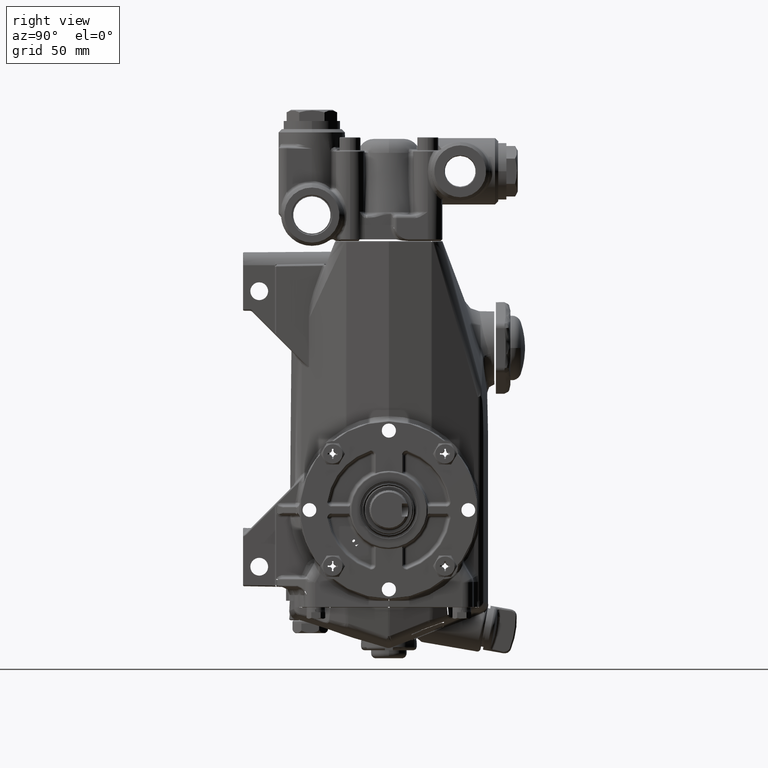
[diagram: clean part render]
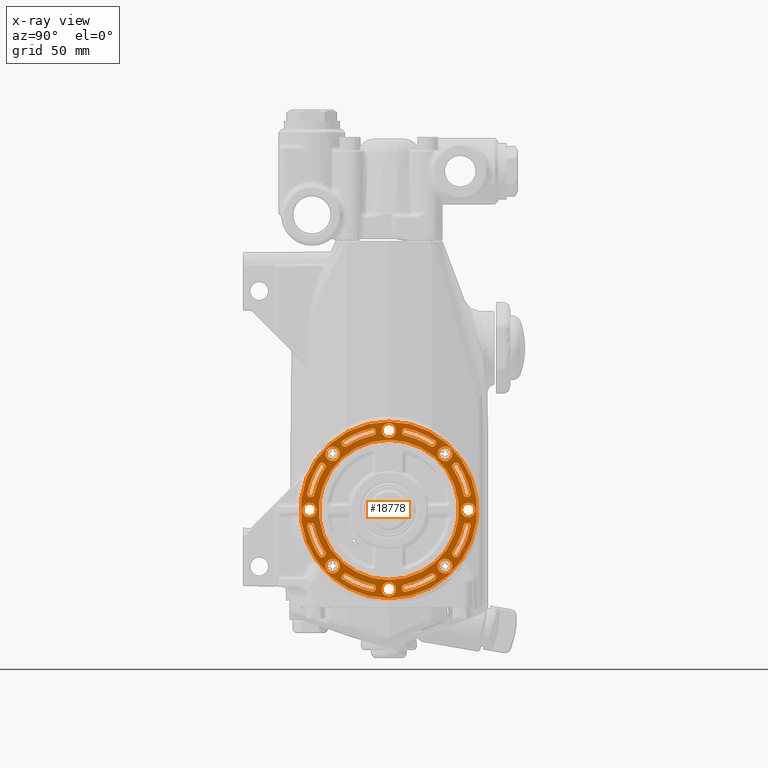
[diagram: x-ray — body ghosted, one internal face saturated and labeled with its STEP entity id]
A machine part, right view, then the same camera in x-ray: the body is ghosted and one INTERNAL B-rep face — a face not visible from any outside direction — is saturated and labeled: STEP entity #18778.
In plain terms, the highlighted planar face has unit normal (-1, -0, 0).
Its self-contained STEP definition (entity closure, byte-faithful):
#68 = CARTESIAN_POINT ( 'NONE',  ( 3.326771653543306506, -1.051380274777290680, -1.534988954571812947 ) ) ;
#71 = CARTESIAN_POINT ( 'NONE',  ( 3.326771653543307838, -1.133035627281103963, 1.579216700443689669 ) ) ;
#119 = VERTEX_POINT ( 'NONE', #21352 ) ;
#213 = CARTESIAN_POINT ( 'NONE',  ( 3.326771653543307838, 1.878031598948729730, 0.3139003376674556756 ) ) ;
#551 = CARTESIAN_POINT ( 'NONE',  ( 3.326771653543306950, 1.851023648872705429, -0.3235240401489674622 ) ) ;
#616 = CARTESIAN_POINT ( 'NONE',  ( 3.326771653543306950, -1.887750772473743233, -0.3130738785735956986 ) ) ;
#674 = CARTESIAN_POINT ( 'NONE',  ( 3.326771653543307394, 0.3815727013604240936, 1.985903270657579434 ) ) ;
#704 = CARTESIAN_POINT ( 'NONE',  ( 3.326771653543307394, 1.985028765662706363, -0.4097197664839714037 ) ) ;
#766 = CIRCLE ( 'NONE', #83095, 0.1771653543307081524 ) ;
#776 = ORIENTED_EDGE ( 'NONE', *, *, #2402, .T. ) ;
#795 = CARTESIAN_POINT ( 'NONE',  ( 3.326771653543306950, 1.547705298598357482, -1.015435294297263091 ) ) ;
#853 = CARTESIAN_POINT ( 'NONE',  ( 3.326771653543306950, 1.106091952456094818, -1.549983290847352757 ) ) ;
#949 = FACE_BOUND ( 'NONE', #2990, .T. ) ;
#1046 = EDGE_CURVE ( 'NONE', #119137, #24713, #766, .T. ) ;
#1258 = CARTESIAN_POINT ( 'NONE',  ( 3.326771653543306950, 1.563738217647669959, -1.119604983222550088 ) ) ;
#1267 = CIRCLE ( 'NONE', #115603, 2.026871847837471652 ) ;
#1301 = CARTESIAN_POINT ( 'NONE',  ( 3.326771653543306950, 1.962868088266329192, -0.3371315403619603024 ) ) ;
#1309 = DIRECTION ( 'NONE',  ( -1.000000000000000000, -1.170319151078641325E-16, -0.000000000000000000 ) ) ;
#1583 = DIRECTION ( 'NONE',  ( 1.000000000000000000, 1.170319151078641325E-16, 0.000000000000000000 ) ) ;
#1600 = CARTESIAN_POINT ( 'NONE',  ( 3.326771653543306950, 1.929133858267716661, 0.000000000000000000 ) ) ;
#1776 = CARTESIAN_POINT ( 'NONE',  ( 3.326771653543306950, -0.3215093099017477529, 1.939602276203081788 ) ) ;
#2010 = ORIENTED_EDGE ( 'NONE', *, *, #40180, .F. ) ;
#2095 = DIRECTION ( 'NONE',  ( -1.000000000000000000, -1.170319151078641325E-16, -0.000000000000000000 ) ) ;
#2196 = CIRCLE ( 'NONE', #72312, 0.3156478372018994838 ) ;
#2402 = EDGE_CURVE ( 'NONE', #77301, #5870, #72872, .T. ) ;
#2562 = VERTEX_POINT ( 'NONE', #77175 ) ;
#2678 = CARTESIAN_POINT ( 'NONE',  ( 3.326771653543307394, -1.923407570537654765, -0.3164094149520021992 ) ) ;
#2806 = CARTESIAN_POINT ( 'NONE',  ( 3.326771653543307838, -1.574974762015466379, -1.129227231294556821 ) ) ;
#2871 = AXIS2_PLACEMENT_3D ( 'NONE', #99409, #2095, #68687 ) ;
#2973 = CIRCLE ( 'NONE', #41043, 1.851080908068039932 ) ;
#2990 = EDGE_LOOP ( 'NONE', ( #46978, #28324, #112871, #116700, #78950, #41846, #83668, #61298 ) ) ;
#3040 = EDGE_CURVE ( 'NONE', #122535, #123229, #78964, .T. ) ;
#3163 = CARTESIAN_POINT ( 'NONE',  ( 3.326771653543305618, -1.538624746172420510, -1.032555312065966513 ) ) ;
#3229 = VERTEX_POINT ( 'NONE', #86200 ) ;
#3272 = CARTESIAN_POINT ( 'NONE',  ( 3.326771653543306950, -1.985916298804626612, -0.3816476810083763160 ) ) ;
#3285 = ORIENTED_EDGE ( 'NONE', *, *, #32178, .T. ) ;
#3290 = CARTESIAN_POINT ( 'NONE',  ( 3.326771653543307838, -1.814388090683566546, 0.3668659710362429660 ) ) ;
#3504 = VERTEX_POINT ( 'NONE', #106753 ) ;
#3620 = AXIS2_PLACEMENT_3D ( 'NONE', #95183, #46813, #21033 ) ;
#3680 = CIRCLE ( 'NONE', #75887, 1.851080908068039932 ) ;
#3712 = CARTESIAN_POINT ( 'NONE',  ( 3.326771653543307394, -0.3151911016699120438, -1.912159567167696972 ) ) ;
#3901 = CARTESIAN_POINT ( 'NONE',  ( 3.326771653543307394, -1.976717059045618452, -0.3550969461954135986 ) ) ;
#4128 = CARTESIAN_POINT ( 'NONE',  ( 3.326771653543306950, 1.146658578304879050, 1.648841495571702565 ) ) ;
#4210 = CARTESIAN_POINT ( 'NONE',  ( 3.326771653543306950, 1.089049080133214664, 1.540760033799239537 ) ) ;
#4290 = CARTESIAN_POINT ( 'NONE',  ( 3.326771653543307394, 0.3235836391086369668, -1.850916174112273715 ) ) ;
#4724 = CARTESIAN_POINT ( 'NONE',  ( 3.326771653543308283, -0.3412689382459737075, -1.966834090208890107 ) ) ;
#4752 = CARTESIAN_POINT ( 'NONE',  ( 3.326771653543306506, 1.133035630274453753, 1.579216703777737818 ) ) ;
#4788 = CARTESIAN_POINT ( 'NONE',  ( 3.326771653543306950, -1.015435294297268420, -1.547705298598353929 ) ) ;
#4841 = CARTESIAN_POINT ( 'NONE',  ( 3.326771653543305618, 1.046625065105517782, 1.535571113545190602 ) ) ;
#4894 = VERTEX_POINT ( 'NONE', #3712 ) ;
#4962 = B_SPLINE_CURVE_WITH_KNOTS ( 'NONE', 3,
 ( #21759, #79522, #89569, #32384, #61296, #99599, #13543, #51863, #25465, #91426, #109610, #23586, #35481, #26093 ),
 .UNSPECIFIED., .F., .F.,
 ( 4, 2, 2, 2, 2, 2, 4 ),
 ( 9.813077866773594792E-18, 0.0007292933855606688939, 0.001093940078340996077, 0.001458586771121323476, 0.001823233463901650659, 0.002187880156681977842, 0.002917173542242641748 ),
 .UNSPECIFIED. ) ;
#4968 = CARTESIAN_POINT ( 'NONE',  ( 3.326771653543306950, -1.113911675783485045, -1.693342926317441544 ) ) ;
#5351 = DIRECTION ( 'NONE',  ( 1.000000000000000000, 1.170319151078641325E-16, 0.000000000000000000 ) ) ;
#5661 = ORIENTED_EDGE ( 'NONE', *, *, #108544, .F. ) ;
#5751 = CARTESIAN_POINT ( 'NONE',  ( 3.326771653542395679, -1.812414094371010975, 0.3763717294635277599 ) ) ;
#5797 = DIRECTION ( 'NONE',  ( 0.000000000000000000, -1.000000000000000000, 0.000000000000000000 ) ) ;
#5826 = CARTESIAN_POINT ( 'NONE',  ( 3.326771653543307394, -0.1771653543307150358, -1.929133858267716661 ) ) ;
#5870 = VERTEX_POINT ( 'NONE', #65558 ) ;
#5912 = CARTESIAN_POINT ( 'NONE',  ( 3.326771653543306506, -1.678577334084470074, -1.130879041287466080 ) ) ;
#6055 = VERTEX_POINT ( 'NONE', #115685 ) ;
#6087 = CARTESIAN_POINT ( 'NONE',  ( 3.326771653543305174, 1.542379538532782535, 1.023552706720136429 ) ) ;
#6448 = ORIENTED_EDGE ( 'NONE', *, *, #3040, .F. ) ;
#6494 = AXIS2_PLACEMENT_3D ( 'NONE', #120359, #72699, #110976 ) ;
#6720 = CARTESIAN_POINT ( 'NONE',  ( 3.326771653543306950, 1.981539400083393465, 0.3653180214013949101 ) ) ;
#6785 = CARTESIAN_POINT ( 'NONE',  ( 3.326771653543307394, 0.3419629769233833994, -1.828839220724975734 ) ) ;
#6995 = CARTESIAN_POINT ( 'NONE',  ( 3.326771653543306950, -1.986585654473274287, 0.3872811768810611177 ) ) ;
#7243 = DIRECTION ( 'NONE',  ( -1.000000000000000000, -1.170319151078641325E-16, -0.000000000000000000 ) ) ;
#7301 = CARTESIAN_POINT ( 'NONE',  ( 3.326771653543307394, -6.737035601123908589E-15, -1.929133858267716661 ) ) ;
#7315 = CARTESIAN_POINT ( 'NONE',  ( 3.326771653543306950, 1.593526706957416605, 1.141854193470031920 ) ) ;
#7894 = CIRCLE ( 'NONE', #23939, 1.702755905511810885 ) ;
#7908 = DIRECTION ( 'NONE',  ( 0.000000000000000000, -1.000000000000000000, 0.000000000000000000 ) ) ;
#7942 = CARTESIAN_POINT ( 'NONE',  ( 3.326771653543306950, 1.556218041015717590, 1.113464714800603161 ) ) ;
#7950 = CARTESIAN_POINT ( 'NONE',  ( 3.326771653543306950, 1.583781834805688016, 1.136312237999727248 ) ) ;
#8030 = DIRECTION ( 'NONE',  ( 0.000000000000000000, -1.000000000000000000, 0.000000000000000000 ) ) ;
#8215 = CARTESIAN_POINT ( 'NONE',  ( 3.326771653543306950, 0.3214776271867212376, 1.939533081672587089 ) ) ;
#8233 = CARTESIAN_POINT ( 'NONE',  ( 3.326771653543307394, -1.148584949399440225, 1.615086722680916020 ) ) ;
#8369 = DIRECTION ( 'NONE',  ( -1.000000000000000000, -0.000000000000000000, -0.000000000000000000 ) ) ;
#8426 = DIRECTION ( 'NONE',  ( -1.000000000000000000, -0.000000000000000000, -0.000000000000000000 ) ) ;
#8479 = B_SPLINE_CURVE_WITH_KNOTS ( 'NONE', 3,
 ( #124205, #55833, #57077, #38175, #75930, #551, #123565, #47021, #18146, #94162, #94775, #103557, #76552, #37562 ),
 .UNSPECIFIED., .F., .F.,
 ( 4, 2, 2, 2, 2, 2, 4 ),
 ( 2.088883680402604457E-17, 0.0007292933855696049966, 0.001093940078354397032, 0.001458586771139188960, 0.001823233463923981104, 0.002187880156708773248, 0.002917173542278346261 ),
 .UNSPECIFIED. ) ;
#8503 = CARTESIAN_POINT ( 'NONE',  ( 3.326771653543307394, -1.364103632997677673, -1.364103632997663462 ) ) ;
#8529 = CARTESIAN_POINT ( 'NONE',  ( 3.326771653543307394, -4.140493155842436978E-18, 0.000000000000000000 ) ) ;
#8565 = CARTESIAN_POINT ( 'NONE',  ( 3.326771653543306506, 1.986588436603673458, 0.3873326661609609034 ) ) ;
#8790 = DIRECTION ( 'NONE',  ( -1.000000000000000000, -1.170319151078641325E-16, -0.000000000000000000 ) ) ;
#8833 = CARTESIAN_POINT ( 'NONE',  ( 3.326771653543307394, 2.018874118642948434E-14, 1.929133858267716661 ) ) ;
#9024 = CARTESIAN_POINT ( 'NONE',  ( 3.326771653543307394, -1.106091952456082605, 1.549983290847358752 ) ) ;
#9116 = CARTESIAN_POINT ( 'NONE',  ( 3.326771653543307394, -1.547705298598349488, 1.015435294297275082 ) ) ;
#9133 = B_SPLINE_CURVE_WITH_KNOTS ( 'NONE', 3,
 ( #39855, #114612, #113993, #66343, #9755, #19199, #95207, #78224, #76370, #27372, #9140, #85781, #77585, #106481 ),
 .UNSPECIFIED., .F., .F.,
 ( 4, 2, 2, 2, 2, 2, 4 ),
 ( 6.938893903907228378E-18, 0.0007292933855695739884, 0.001093940078354368193, 0.001458586771139162288, 0.001823233463923956601, 0.002187880156708750697, 0.002917173542278350164 ),
 .UNSPECIFIED. ) ;
#9140 = CARTESIAN_POINT ( 'NONE',  ( 3.326771653543306506, 0.3457329745014959266, 1.825893780902471342 ) ) ;
#9193 = DIRECTION ( 'NONE',  ( 1.000000000000000000, 1.170319151078641325E-16, 0.000000000000000000 ) ) ;
#9440 = CARTESIAN_POINT ( 'NONE',  ( 3.326771653543307838, 0.3371315403619815632, 1.962868088266325195 ) ) ;
#9476 = CARTESIAN_POINT ( 'NONE',  ( 3.326771653543306506, -0.3138785754864341082, -1.878128815881576985 ) ) ;
#9563 = CARTESIAN_POINT ( 'NONE',  ( 3.326771653543306950, 1.537603563617388591, -1.079987192627908321 ) ) ;
#9617 = VERTEX_POINT ( 'NONE', #49120 ) ;
#9633 = DIRECTION ( 'NONE',  ( 0.000000000000000000, -1.000000000000000000, 0.000000000000000000 ) ) ;
#9739 = CIRCLE ( 'NONE', #31796, 0.1771653543307082912 ) ;
#9755 = CARTESIAN_POINT ( 'NONE',  ( 3.326771653543305618, 0.3193678651410724045, 1.859654865153016479 ) ) ;
#9774 = DIRECTION ( 'NONE',  ( -1.000000000000000000, -1.170319151078641325E-16, -0.000000000000000000 ) ) ;
#10059 = CARTESIAN_POINT ( 'NONE',  ( 3.326771653543306950, 0.3193806971624982283, 1.934206383820413988 ) ) ;
#10075 = VERTEX_POINT ( 'NONE', #86391 ) ;
#10182 = CARTESIAN_POINT ( 'NONE',  ( 3.326771653543306506, 1.542785697979726756, -1.093500823128415567 ) ) ;
#10241 = CARTESIAN_POINT ( 'NONE',  ( 3.326771653543307394, 1.113464714800619593, -1.556218041015706266 ) ) ;
#10334 = FACE_BOUND ( 'NONE', #75565, .T. ) ;
#10355 = CARTESIAN_POINT ( 'NONE',  ( 3.326771653543306950, -1.659478797209853251, 1.142841096764729558 ) ) ;
#10481 = DIRECTION ( 'NONE',  ( 0.000000000000000000, -1.000000000000000000, 0.000000000000000000 ) ) ;
#10804 = CARTESIAN_POINT ( 'NONE',  ( 3.326771653543306950, 1.536446486648061160, -1.075342942241139799 ) ) ;
#10962 = FACE_BOUND ( 'NONE', #72032, .T. ) ;
#11020 = CARTESIAN_POINT ( 'NONE',  ( 3.326771653543307394, -0.3763717294635058885, -1.812414094370999207 ) ) ;
#11025 = DIRECTION ( 'NONE',  ( -1.000000000000000000, -1.170319151078641325E-16, -0.000000000000000000 ) ) ;
#11289 = CARTESIAN_POINT ( 'NONE',  ( 3.326771653543307394, -1.299649890669890379E-17, 0.000000000000000000 ) ) ;
#11300 = AXIS2_PLACEMENT_3D ( 'NONE', #71035, #81062, #51539 ) ;
#11332 = CARTESIAN_POINT ( 'NONE',  ( 3.326771653543307394, -1.364103632997658577, 1.364103632997682336 ) ) ;
#11540 = CIRCLE ( 'NONE', #85824, 1.851080908068039932 ) ;
#11578 = EDGE_CURVE ( 'NONE', #91357, #106505, #18984, .T. ) ;
#11589 = CARTESIAN_POINT ( 'NONE',  ( 3.326771653543307838, -1.664534767694755724, 1.140387557875944147 ) ) ;
#11614 = CARTESIAN_POINT ( 'NONE',  ( 3.326771653543306950, 1.364103632997668125, -1.364103632997673010 ) ) ;
#11746 = EDGE_CURVE ( 'NONE', #121414, #117924, #73699, .T. ) ;
#11796 = CARTESIAN_POINT ( 'NONE',  ( 3.326771653543306950, -0.3368509684322759101, 1.963434657661293548 ) ) ;
#11844 = CARTESIAN_POINT ( 'NONE',  ( 3.326771653543307394, 0.000000000000000000, 1.702755905511810885 ) ) ;
#12007 = DIRECTION ( 'NONE',  ( 0.000000000000000000, -1.000000000000000000, 0.000000000000000000 ) ) ;
#12023 = ORIENTED_EDGE ( 'NONE', *, *, #33251, .F. ) ;
#12139 = CARTESIAN_POINT ( 'NONE',  ( 3.326771653543306950, 1.897410173586148385, 0.3140496218123189354 ) ) ;
#12161 = B_SPLINE_CURVE_WITH_KNOTS ( 'NONE', 3,
 ( #113244, #27227, #75588, #57364, #86870, #49780, #47915, #57992, #116954, #117553, #96289, #213, #78691, #29082 ),
 .UNSPECIFIED., .F., .F.,
 ( 4, 2, 2, 2, 2, 2, 4 ),
 ( 2.525795506525165703E-17, 0.0007292933855606832053, 0.001093940078341009954, 0.001458586771121336704, 0.001823233463901663236, 0.002187880156681989985, 0.002917173542242645218 ),
 .UNSPECIFIED. ) ;
#12256 = EDGE_CURVE ( 'NONE', #37688, #58031, #27602, .T. ) ;
#12261 = CIRCLE ( 'NONE', #26348, 2.026871847837471652 ) ;
#12370 = CARTESIAN_POINT ( 'NONE',  ( 3.326771653543307394, -1.299649890669890379E-17, 0.000000000000000000 ) ) ;
#12424 = CARTESIAN_POINT ( 'NONE',  ( 3.326771653543306950, -0.3706280464028866017, 1.983379597112583381 ) ) ;
#12707 = CARTESIAN_POINT ( 'NONE',  ( 3.326771653543307394, -1.981539400083391245, -0.3653180214013682647 ) ) ;
#12791 = CARTESIAN_POINT ( 'NONE',  ( 3.326771653543307394, -0.3140496218123001726, 1.897410173586151494 ) ) ;
#12852 = CARTESIAN_POINT ( 'NONE',  ( 3.326771653543306506, -1.593572584721466123, 1.141877733139477602 ) ) ;
#12902 = CIRCLE ( 'NONE', #2871, 0.3156478372018982625 ) ;
#13049 = EDGE_CURVE ( 'NONE', #112682, #117863, #49340, .T. ) ;
#13140 = DIRECTION ( 'NONE',  ( -1.000000000000000000, -1.170319151078641325E-16, -0.000000000000000000 ) ) ;
#13165 = CARTESIAN_POINT ( 'NONE',  ( 3.326771653543307394, 2.085274569414292350E-16, -1.702755905511810885 ) ) ;
#13183 = CARTESIAN_POINT ( 'NONE',  ( 3.326771653543307394, -1.119604983222555639, -1.563738217647665962 ) ) ;
#13523 = CARTESIAN_POINT ( 'NONE',  ( 3.326771653543307394, -0.4041367533570428550, -1.986181127217466091 ) ) ;
#13524 = AXIS2_PLACEMENT_3D ( 'NONE', #91793, #83012, #15797 ) ;
#13543 = CARTESIAN_POINT ( 'NONE',  ( 3.326771653543307394, -1.534983495647310292, 1.065825448121319186 ) ) ;
#13544 = B_SPLINE_CURVE_WITH_KNOTS ( 'NONE', 3,
 ( #97377, #28940, #87970, #47761, #68, #115546, #105554, #19511, #57838, #96147, #77296, #29545, #23849, #98622 ),
 .UNSPECIFIED., .F., .F.,
 ( 4, 2, 2, 2, 2, 2, 4 ),
 ( 0.000000000000000000, 0.0007292933855606720380, 0.001093940078341000630, 0.001458586771121329548, 0.001823233463901658465, 0.002187880156681986949, 0.002917173542242644784 ),
 .UNSPECIFIED. ) ;
#13704 = EDGE_CURVE ( 'NONE', #50836, #44318, #12902, .T. ) ;
#13775 = ORIENTED_EDGE ( 'NONE', *, *, #56717, .T. ) ;
#13777 = CIRCLE ( 'NONE', #90006, 0.3156478372018995948 ) ;
#13781 = CARTESIAN_POINT ( 'NONE',  ( 3.326771653543307394, -1.146658578304867948, -1.648841495571710780 ) ) ;
#13852 = DIRECTION ( 'NONE',  ( -1.000000000000000000, -1.170319151078641325E-16, -0.000000000000000000 ) ) ;
#13858 = DIRECTION ( 'NONE',  ( -1.000000000000000000, -1.170319151078641325E-16, -0.000000000000000000 ) ) ;
#13979 = CARTESIAN_POINT ( 'NONE',  ( 3.326771653543307394, -1.186938278666969326, -1.364103632997663462 ) ) ;
#13980 = EDGE_CURVE ( 'NONE', #48719, #10075, #9739, .T. ) ;
#14148 = CARTESIAN_POINT ( 'NONE',  ( 3.326771653543306950, -0.3214776271867068602, -1.939533081672587977 ) ) ;
#14194 = ORIENTED_EDGE ( 'NONE', *, *, #108048, .F. ) ;
#14269 = CARTESIAN_POINT ( 'NONE',  ( 3.326771653543306950, 1.093500823128431998, 1.542785697979716097 ) ) ;
#14397 = CARTESIAN_POINT ( 'NONE',  ( 3.326771653543307394, -1.144164509061920354, -1.598847335554200555 ) ) ;
#14468 = EDGE_LOOP ( 'NONE', ( #99863, #18480, #109605, #63687, #40865, #75340, #29413, #2010 ) ) ;
#14761 = AXIS2_PLACEMENT_3D ( 'NONE', #15913, #88367, #73071 ) ;
#14832 = CARTESIAN_POINT ( 'NONE',  ( 3.326771653543307394, -1.547705298598369694, -1.015435294297243995 ) ) ;
#14905 = CARTESIAN_POINT ( 'NONE',  ( 3.326771653543307394, -0.3985425149427702096, 1.986711293253078159 ) ) ;
#14976 = CARTESIAN_POINT ( 'NONE',  ( 3.326771653543307394, 0.3668659786921911192, -1.814388089093706746 ) ) ;
#15196 = ORIENTED_EDGE ( 'NONE', *, *, #100172, .F. ) ;
#15414 = EDGE_LOOP ( 'NONE', ( #47519, #98162 ) ) ;
#15609 = CIRCLE ( 'NONE', #119806, 2.145669291332502393 ) ;
#15797 = DIRECTION ( 'NONE',  ( 0.000000000000000000, -1.000000000000000000, 0.000000000000000000 ) ) ;
#15847 = CIRCLE ( 'NONE', #72066, 0.3156478372018995948 ) ;
#15913 = CARTESIAN_POINT ( 'NONE',  ( 3.326771653543306950, 1.364103632997687221, 1.364103632997653914 ) ) ;
#15930 = CARTESIAN_POINT ( 'NONE',  ( 3.326771653543306950, 1.364103632997668125, -1.364103632997673010 ) ) ;
#16143 = CARTESIAN_POINT ( 'NONE',  ( 3.326771653543306950, 1.686623255655709919, 1.123013757591787565 ) ) ;
#16164 = CARTESIAN_POINT ( 'NONE',  ( 3.326771653543307394, -1.299649890669890379E-17, 0.000000000000000000 ) ) ;
#16517 = CARTESIAN_POINT ( 'NONE',  ( 3.326771653543307394, 0.3763717294634932875, -1.812414094371002093 ) ) ;
#16696 = CARTESIAN_POINT ( 'NONE',  ( 3.326771653543307394, -4.140493155842436978E-18, 0.000000000000000000 ) ) ;
#17012 = CARTESIAN_POINT ( 'NONE',  ( 3.326771653543307394, -2.106299212598425008, 1.347107753498895519E-14 ) ) ;
#17018 = CARTESIAN_POINT ( 'NONE',  ( 3.326771653543306950, 1.129227231294583245, 1.574974762015447505 ) ) ;
#17227 = CARTESIAN_POINT ( 'NONE',  ( 3.326771653543308283, -1.093507460440732659, 1.542786856006951535 ) ) ;
#17250 = ORIENTED_EDGE ( 'NONE', *, *, #21637, .F. ) ;
#17317 = VERTEX_POINT ( 'NONE', #71503 ) ;
#17989 = CARTESIAN_POINT ( 'NONE',  ( 3.326771653543306950, 1.534986252906857640, 1.065855456238256505 ) ) ;
#18146 = CARTESIAN_POINT ( 'NONE',  ( 3.326771653543306950, 1.835487607211784500, -0.3348964057340477196 ) ) ;
#18401 = CARTESIAN_POINT ( 'NONE',  ( 3.326771653543307394, 1.535571113545201261, -1.046625065105501351 ) ) ;
#18480 = ORIENTED_EDGE ( 'NONE', *, *, #24064, .F. ) ;
#18631 = CARTESIAN_POINT ( 'NONE',  ( 3.326771653543306950, 1.923407570537656763, 0.3164094149520162991 ) ) ;
#18707 = CARTESIAN_POINT ( 'NONE',  ( 3.326771653543307394, -6.745398684220138180E-15, -1.929133858267716661 ) ) ;
#18772 = CARTESIAN_POINT ( 'NONE',  ( 3.326771653543306950, 1.149569337445983885, -1.626345334129603026 ) ) ;
#18778 = ADVANCED_FACE ( 'NONE', ( #44327, #121524, #82693, #35526, #103366, #73863, #112154, #46197, #84534, #64452, #10334, #949, #58114, #105813, #77556, #10962, #48662, #48035 ), #37978, .F. ) ;
#18893 = DIRECTION ( 'NONE',  ( 0.000000000000000000, -1.000000000000000000, 0.000000000000000000 ) ) ;
#18984 = CIRCLE ( 'NONE', #13524, 0.3156478372018995948 ) ;
#19077 = VERTEX_POINT ( 'NONE', #55944 ) ;
#19106 = VERTEX_POINT ( 'NONE', #17012 ) ;
#19199 = CARTESIAN_POINT ( 'NONE',  ( 3.326771653543306506, 0.3235240401489878903, 1.851023648872702543 ) ) ;
#19511 = CARTESIAN_POINT ( 'NONE',  ( 3.326771653543307838, -1.075342942241145128, -1.536446486648057608 ) ) ;
#19629 = CARTESIAN_POINT ( 'NONE',  ( 3.326771653543307838, 1.542379542822151395, -1.023552700182371433 ) ) ;
#19833 = AXIS2_PLACEMENT_3D ( 'NONE', #55605, #7243, #120898 ) ;
#20010 = CARTESIAN_POINT ( 'NONE',  ( 3.326771653543306950, 1.144137984202849845, -1.598776004569807840 ) ) ;
#20361 = CARTESIAN_POINT ( 'NONE',  ( 3.326771653543307394, -1.929133858267716661, 1.347107753498895519E-14 ) ) ;
#20440 = CARTESIAN_POINT ( 'NONE',  ( 3.326771653543306950, -1.614994406462191945, 1.149178096139143346 ) ) ;
#20785 = CARTESIAN_POINT ( 'NONE',  ( 3.326771653543306950, 1.986713384740028454, -0.3985320980221198073 ) ) ;
#20826 = CARTESIAN_POINT ( 'NONE',  ( 3.326771653543307394, -1.299649890669890379E-17, 0.000000000000000000 ) ) ;
#20988 = CARTESIAN_POINT ( 'NONE',  ( 3.326771653543306950, -0.3668659786921784072, 1.814388089093709411 ) ) ;
#21033 = DIRECTION ( 'NONE',  ( 1.170319151078641325E-16, -1.000000000000000000, 0.000000000000000000 ) ) ;
#21116 = CARTESIAN_POINT ( 'NONE',  ( 3.326771653543308283, -0.3650989065984295290, -1.982098268607401792 ) ) ;
#21352 = CARTESIAN_POINT ( 'NONE',  ( 3.326771653543307394, -1.563738217647676843, -1.119604983222540096 ) ) ;
#21392 = CARTESIAN_POINT ( 'NONE',  ( 3.326771653543306950, 1.939533081672591308, -0.3214776271867000323 ) ) ;
#21395 = CARTESIAN_POINT ( 'NONE',  ( 3.326771653543307838, -0.3348964057340550471, -1.835487607211783390 ) ) ;
#21597 = CARTESIAN_POINT ( 'NONE',  ( 3.326771653543307394, -0.3419629769233705763, 1.828839220724978398 ) ) ;
#21637 = EDGE_CURVE ( 'NONE', #48122, #39808, #75870, .T. ) ;
#21705 = AXIS2_PLACEMENT_3D ( 'NONE', #116135, #40131, #88549 ) ;
#21715 = CARTESIAN_POINT ( 'NONE',  ( 3.326771653543306950, 1.693342926317445318, -1.113911675783478605 ) ) ;
#21759 = CARTESIAN_POINT ( 'NONE',  ( 3.326771653543307394, -1.547705298598349488, 1.015435294297275082 ) ) ;
#21920 = CARTESIAN_POINT ( 'NONE',  ( 3.326771653543307394, -2.465042306318467107E-16, 0.000000000000000000 ) ) ;
#22031 = DIRECTION ( 'NONE',  ( 0.000000000000000000, -1.000000000000000000, 0.000000000000000000 ) ) ;
#22113 = CARTESIAN_POINT ( 'NONE',  ( 3.326771653543306950, 1.674120545018800144, -1.134389218488481621 ) ) ;
#22166 = CARTESIAN_POINT ( 'NONE',  ( 3.326771653543307838, -1.828907153726675894, 0.3418805836484033467 ) ) ;
#22168 = ORIENTED_EDGE ( 'NONE', *, *, #97239, .F. ) ;
#22214 = CARTESIAN_POINT ( 'NONE',  ( 3.326771653543306950, 0.3873326661609448607, -1.986588436603673458 ) ) ;
#22385 = CARTESIAN_POINT ( 'NONE',  ( 3.326771653543307838, 1.144164509061931234, 1.598847335554193227 ) ) ;
#22581 = ORIENTED_EDGE ( 'NONE', *, *, #72370, .F. ) ;
#22605 = CARTESIAN_POINT ( 'NONE',  ( 3.326771653543306950, -1.147999750363733362, -1.643269378359824895 ) ) ;
#22684 = CARTESIAN_POINT ( 'NONE',  ( 3.326771653543306950, 1.364103632997687221, 1.364103632997653914 ) ) ;
#22701 = CARTESIAN_POINT ( 'NONE',  ( 3.326771653543307394, -1.364103632997658577, 1.364103632997682336 ) ) ;
#22762 = CARTESIAN_POINT ( 'NONE',  ( 3.326771653543309171, -1.986588436603676344, -0.3873326661609305943 ) ) ;
#22829 = ORIENTED_EDGE ( 'NONE', *, *, #91715, .T. ) ;
#22846 = CARTESIAN_POINT ( 'NONE',  ( 3.326771653543307394, -0.3235836391086241437, 1.850916174112275714 ) ) ;
#23374 = CARTESIAN_POINT ( 'NONE',  ( 3.326771653543307394, -1.846839360462060098, 0.3260331409972503924 ) ) ;
#23390 = CARTESIAN_POINT ( 'NONE',  ( 3.326771653543307394, 1.061078214353772919, -1.534693253332872098 ) ) ;
#23442 = CARTESIAN_POINT ( 'NONE',  ( 3.326771653543307394, -0.3176923816918953980, 1.864136076226262873 ) ) ;
#23586 = CARTESIAN_POINT ( 'NONE',  ( 3.326771653543306950, -1.549929936280656229, 1.106007821517869472 ) ) ;
#23606 = B_SPLINE_CURVE_WITH_KNOTS ( 'NONE', 3,
 ( #65282, #27553, #106034, #85967, #77165, #86585, #75309, #113557, #18772, #66531, #56450, #20010, #104195, #47617, #65895, #58320 ),
 .UNSPECIFIED., .F., .F.,
 ( 4, 2, 2, 2, 2, 2, 2, 4 ),
 ( 2.037543309078296514E-16, 0.0004282295208269724473, 0.0008564590416537410647, 0.001712918083307283720, 0.002141147604134044802, 0.002569377124960805885, 0.002997606645787566967, 0.003425836166614328049 ),
 .UNSPECIFIED. ) ;
#23665 = AXIS2_PLACEMENT_3D ( 'NONE', #32436, #118437, #43692 ) ;
#23666 = CIRCLE ( 'NONE', #117933, 0.3156478372018985401 ) ;
#23830 = CARTESIAN_POINT ( 'NONE',  ( 3.326771653543307394, -1.134389218488487838, -1.674120545018796813 ) ) ;
#23849 = CARTESIAN_POINT ( 'NONE',  ( 3.326771653543307838, -1.113464709854560253, -1.556218034958093410 ) ) ;
#23939 = AXIS2_PLACEMENT_3D ( 'NONE', #56129, #8369, #46691 ) ;
#24011 = CARTESIAN_POINT ( 'NONE',  ( 3.326771653543307838, -1.864141588363713131, 0.3176885072522619424 ) ) ;
#24022 = ORIENTED_EDGE ( 'NONE', *, *, #37686, .F. ) ;
#24064 = EDGE_CURVE ( 'NONE', #105921, #58397, #4962, .T. ) ;
#24330 = CARTESIAN_POINT ( 'NONE',  ( 3.326771653543306950, -0.4041367577442375736, 1.986181126311927780 ) ) ;
#24447 = EDGE_CURVE ( 'NONE', #9617, #19106, #41461, .T. ) ;
#24713 = VERTEX_POINT ( 'NONE', #42729 ) ;
#24766 = DIRECTION ( 'NONE',  ( -1.000000000000000000, -1.170319151078641325E-16, -0.000000000000000000 ) ) ;
#25072 = B_SPLINE_CURVE_WITH_KNOTS ( 'NONE', 3,
 ( #39034, #117514, #59192, #29658, #69234, #50987, #59797, #99340, #78037, #108146, #32116, #22113, #79871, #116292, #118135, #60422 ),
 .UNSPECIFIED., .F., .F.,
 ( 4, 2, 2, 2, 2, 2, 2, 4 ),
 ( 0.000000000000000000, 0.0004282295209120112484, 0.0008564590418240224969, 0.001712918083648041958, 0.002141147604560052556, 0.002569377125472062720, 0.002997606646384073318, 0.003425836167296083916 ),
 .UNSPECIFIED. ) ;
#25379 = CARTESIAN_POINT ( 'NONE',  ( 3.326771653543306506, -1.598776004569812059, -1.144137984202846070 ) ) ;
#25384 = EDGE_CURVE ( 'NONE', #117863, #29486, #97819, .T. ) ;
#25465 = CARTESIAN_POINT ( 'NONE',  ( 3.326771653543307394, -1.537603563617380376, 1.079987192627920312 ) ) ;
#25549 = DIRECTION ( 'NONE',  ( -1.000000000000000000, -1.170319151078641325E-16, -0.000000000000000000 ) ) ;
#25556 = CARTESIAN_POINT ( 'NONE',  ( 3.326771653543307394, 1.538624746172425395, 1.032555312065963404 ) ) ;
#25564 = CARTESIAN_POINT ( 'NONE',  ( 3.326771653543306950, 1.574974762015475038, 1.129227231294544387 ) ) ;
#25650 = EDGE_CURVE ( 'NONE', #75498, #98165, #101951, .T. ) ;
#25680 = CARTESIAN_POINT ( 'NONE',  ( 3.326771653543306950, 1.186938278666960001, -1.364103632997673010 ) ) ;
#25875 = CARTESIAN_POINT ( 'NONE',  ( 3.326771653543307394, -1.118674304894722971, 1.690209982545697320 ) ) ;
#25907 = CARTESIAN_POINT ( 'NONE',  ( 3.326771653543307394, -4.140493155842436208E-18, 0.000000000000000000 ) ) ;
#26093 = CARTESIAN_POINT ( 'NONE',  ( 3.326771653543306950, -1.563738217647661521, 1.119604983222561856 ) ) ;
#26170 = ORIENTED_EDGE ( 'NONE', *, *, #71686, .F. ) ;
#26183 = EDGE_CURVE ( 'NONE', #17317, #78522, #77822, .T. ) ;
#26196 = CARTESIAN_POINT ( 'NONE',  ( 3.326771653543306506, 1.648798385408522416, 1.147289342132233214 ) ) ;
#26200 = CARTESIAN_POINT ( 'NONE',  ( 3.326771653543307394, 1.976717059045622671, 0.3550969461954383566 ) ) ;
#26269 = DIRECTION ( 'NONE',  ( -1.000000000000000000, -1.170319151078641325E-16, -0.000000000000000000 ) ) ;
#26348 = AXIS2_PLACEMENT_3D ( 'NONE', #104684, #9193, #88319 ) ;
#26588 = VERTEX_POINT ( 'NONE', #2806 ) ;
#26791 = EDGE_CURVE ( 'NONE', #61462, #28123, #33792, .T. ) ;
#26928 = DIRECTION ( 'NONE',  ( -1.000000000000000000, -1.170319151078641325E-16, -0.000000000000000000 ) ) ;
#27227 = CARTESIAN_POINT ( 'NONE',  ( 3.326771653543306950, 1.814388089093705414, 0.3668659786921963373 ) ) ;
#27359 = CARTESIAN_POINT ( 'NONE',  ( 3.326771653543307394, -1.299649890669890379E-17, 0.000000000000000000 ) ) ;
#27372 = CARTESIAN_POINT ( 'NONE',  ( 3.326771653543306506, 0.3418805836484042904, 1.828907153726680113 ) ) ;
#27408 = CARTESIAN_POINT ( 'NONE',  ( 3.326771653543306506, 1.954565120958792868, 0.3293818718167436099 ) ) ;
#27553 = CARTESIAN_POINT ( 'NONE',  ( 3.326771653543306950, 1.118674304894733407, -1.690209982545689105 ) ) ;
#27576 = CARTESIAN_POINT ( 'NONE',  ( 3.326771653543307394, 6.065921084684207584E-32, -2.145669291332502837 ) ) ;
#27602 = CIRCLE ( 'NONE', #111771, 0.1771653543307080136 ) ;
#27623 = CARTESIAN_POINT ( 'NONE',  ( 3.326771653543306506, -1.818048866706913680, -0.3579313023414769646 ) ) ;
#27670 = CIRCLE ( 'NONE', #113869, 0.3156478372018994838 ) ;
#27773 = EDGE_CURVE ( 'NONE', #55946, #70151, #7894, .T. ) ;
#27794 = CIRCLE ( 'NONE', #19833, 0.1771653543307082912 ) ;
#27932 = CIRCLE ( 'NONE', #39912, 0.3156478372018994838 ) ;
#27953 = EDGE_CURVE ( 'NONE', #34759, #115160, #106058, .T. ) ;
#28001 = EDGE_LOOP ( 'NONE', ( #74404, #122789 ) ) ;
#28123 = VERTEX_POINT ( 'NONE', #60921 ) ;
#28306 = CARTESIAN_POINT ( 'NONE',  ( 3.326771653543306506, 0.3872811768810689448, 1.986585654473272733 ) ) ;
#28324 = ORIENTED_EDGE ( 'NONE', *, *, #37370, .F. ) ;
#28440 = AXIS2_PLACEMENT_3D ( 'NONE', #20826, #13852, #12007 ) ;
#28564 = CARTESIAN_POINT ( 'NONE',  ( 3.326771653543307394, -1.812414094371003648, -0.3763717294634859045 ) ) ;
#28875 = CARTESIAN_POINT ( 'NONE',  ( 3.326771653543307394, -1.574974762015452834, 1.129227231294580136 ) ) ;
#28940 = CARTESIAN_POINT ( 'NONE',  ( 3.326771653543307394, -1.023552700182376318, -1.542379542822147842 ) ) ;
#28957 = CARTESIAN_POINT ( 'NONE',  ( 3.326771653543306950, 1.934206383820417985, -0.3193806971624770230 ) ) ;
#29082 = CARTESIAN_POINT ( 'NONE',  ( 3.326771653543306950, 1.897410173586148385, 0.3140496218123189354 ) ) ;
#29153 = ORIENTED_EDGE ( 'NONE', *, *, #57129, .F. ) ;
#29199 = DIRECTION ( 'NONE',  ( 0.000000000000000000, -1.000000000000000000, 0.000000000000000000 ) ) ;
#29413 = ORIENTED_EDGE ( 'NONE', *, *, #85325, .F. ) ;
#29486 = VERTEX_POINT ( 'NONE', #59002 ) ;
#29530 = CARTESIAN_POINT ( 'NONE',  ( 3.326771653543307394, 0.3298665673228842188, 1.954210980301182676 ) ) ;
#29545 = CARTESIAN_POINT ( 'NONE',  ( 3.326771653543306506, -1.106007821517862810, -1.549929936280660892 ) ) ;
#29569 = CARTESIAN_POINT ( 'NONE',  ( 3.326771653543306950, -0.3176885072522550035, -1.864141588363717572 ) ) ;
#29658 = CARTESIAN_POINT ( 'NONE',  ( 3.326771653543306506, 1.593572584721473007, -1.141877733139464723 ) ) ;
#29697 = DIRECTION ( 'NONE',  ( 0.000000000000000000, -1.000000000000000000, 0.000000000000000000 ) ) ;
#29727 = CARTESIAN_POINT ( 'NONE',  ( 3.326771653543307394, 1.080105331588350204, -1.537637416920763833 ) ) ;
#29761 = CARTESIAN_POINT ( 'NONE',  ( 3.326771653543305618, 0.3193964925806857535, -1.934255469358367119 ) ) ;
#29773 = DIRECTION ( 'NONE',  ( -1.000000000000000000, -1.170319151078641325E-16, -0.000000000000000000 ) ) ;
#30314 = CARTESIAN_POINT ( 'NONE',  ( 3.326771653543308283, -1.973725329037091747, -0.3502085124717650433 ) ) ;
#30330 = CARTESIAN_POINT ( 'NONE',  ( 3.326771653543306950, -1.878128815881573432, 0.3138785754864398259 ) ) ;
#30964 = CARTESIAN_POINT ( 'NONE',  ( 3.326771653543307394, -6.756272768202563790E-15, -1.929133858267716661 ) ) ;
#31072 = CARTESIAN_POINT ( 'NONE',  ( 3.326771653543306506, -1.643269378359820454, 1.147999750363739579 ) ) ;
#31162 = CARTESIAN_POINT ( 'NONE',  ( 3.326771653543306506, 1.118674301152206008, 1.690209985007591786 ) ) ;
#31421 = VERTEX_POINT ( 'NONE', #33204 ) ;
#31597 = CARTESIAN_POINT ( 'NONE',  ( 3.326771653543307394, 0.4097197664839656306, -1.985028765662707473 ) ) ;
#31732 = CIRCLE ( 'NONE', #75878, 0.1771653543307082912 ) ;
#31739 = AXIS2_PLACEMENT_3D ( 'NONE', #119061, #60132, #98430 ) ;
#31752 = VERTEX_POINT ( 'NONE', #123514 ) ;
#31751 = B_SPLINE_CURVE_WITH_KNOTS ( 'NONE', 3,
 ( #103428, #73924, #18631, #93399, #94628, #27408, #112218, #92791, #26200, #6720, #45020, #56932, #8565, #85819, #46260, #36218 ),
 .UNSPECIFIED., .F., .F.,
 ( 4, 2, 2, 2, 2, 2, 2, 4 ),
 ( 4.967492064660139969E-17, 0.0004282295209120312520, 0.0008564590418240128475, 0.001712918083647978424, 0.002141147604559963651, 0.002569377125471948228, 0.002997606646383933673, 0.003425836167295918683 ),
 .UNSPECIFIED. ) ;
#31796 = AXIS2_PLACEMENT_3D ( 'NONE', #11332, #1309, #22031 ) ;
#31990 = CARTESIAN_POINT ( 'NONE',  ( 3.326771653543306950, 1.912159567167700081, 0.3151911016699043833 ) ) ;
#32116 = CARTESIAN_POINT ( 'NONE',  ( 3.326771653543306950, 1.664534767694763495, -1.140387557875931490 ) ) ;
#32178 = EDGE_CURVE ( 'NONE', #46287, #49802, #94588, .T. ) ;
#32384 = CARTESIAN_POINT ( 'NONE',  ( 3.326771653543307394, -1.535571113545193933, 1.046625065105513119 ) ) ;
#32394 = CARTESIAN_POINT ( 'NONE',  ( 3.326771653543306950, 1.123004912811975675, 1.686629142626318467 ) ) ;
#32436 = CARTESIAN_POINT ( 'NONE',  ( 3.326771653543307394, -4.140493155842437748E-18, 0.000000000000000000 ) ) ;
#32704 = VERTEX_POINT ( 'NONE', #55180 ) ;
#32778 = CARTESIAN_POINT ( 'NONE',  ( 3.326771653543306950, 1.364103632997687221, 1.364103632997653914 ) ) ;
#32860 = CARTESIAN_POINT ( 'NONE',  ( 3.326771653543307394, -0.3130738785735903140, 1.887750772473744121 ) ) ;
#32987 = CARTESIAN_POINT ( 'NONE',  ( 3.326771653543306950, -0.3298665673228687312, -1.954210980301182010 ) ) ;
#33102 = CARTESIAN_POINT ( 'NONE',  ( 3.326771653543306506, 1.113464709854570689, 1.556218034958084750 ) ) ;
#33110 = CARTESIAN_POINT ( 'NONE',  ( 3.326771653543307394, -0.3873326661609309829, 1.986588436603677899 ) ) ;
#33145 = VERTEX_POINT ( 'NONE', #72663 ) ;
#33182 = CARTESIAN_POINT ( 'NONE',  ( 3.326771653543307394, 0.3139003376674500689, -1.878031598948729952 ) ) ;
#33204 = CARTESIAN_POINT ( 'NONE',  ( 3.326771653543307394, -1.119604983222533656, 1.563738217647681505 ) ) ;
#33219 = CARTESIAN_POINT ( 'NONE',  ( 3.326771653543306950, 1.364103632997668125, -1.364103632997673010 ) ) ;
#33232 = CARTESIAN_POINT ( 'NONE',  ( 3.326771653543307394, -1.142841096764723119, -1.659478797209856804 ) ) ;
#33251 = EDGE_CURVE ( 'NONE', #72906, #51172, #108417, .T. ) ;
#33295 = EDGE_CURVE ( 'NONE', #36378, #121414, #9133, .T. ) ;
#33410 = CARTESIAN_POINT ( 'NONE',  ( 3.326771653543307394, -1.859654865153014702, 0.3193678651410664648 ) ) ;
#33426 = ORIENTED_EDGE ( 'NONE', *, *, #12256, .T. ) ;
#33621 = DIRECTION ( 'NONE',  ( 0.000000000000000000, -1.000000000000000000, 0.000000000000000000 ) ) ;
#33715 = EDGE_CURVE ( 'NONE', #98167, #43866, #43580, .T. ) ;
#33792 = CIRCLE ( 'NONE', #108037, 0.1771653543307081524 ) ;
#34034 = B_SPLINE_CURVE_WITH_KNOTS ( 'NONE', 3,
 ( #83633, #25875, #55360, #121864, #93678, #94297, #123114, #36508, #74838, #8233, #84889, #59690, #38321, #114323, #71, #114946 ),
 .UNSPECIFIED., .F., .F.,
 ( 4, 2, 2, 2, 2, 2, 2, 4 ),
 ( 0.000000000000000000, 0.0004282295208267904640, 0.0008564590416535809280, 0.001712918083307161856, 0.002141147604133951561, 0.002569377124960741266, 0.002997606645787530971, 0.003425836166614320676 ),
 .UNSPECIFIED. ) ;
#34035 = DIRECTION ( 'NONE',  ( -1.000000000000000000, -1.170319151078641325E-16, -0.000000000000000000 ) ) ;
#34253 = CARTESIAN_POINT ( 'NONE',  ( 3.326771653543307394, -2.465042306318467107E-16, 0.000000000000000000 ) ) ;
#34322 = CARTESIAN_POINT ( 'NONE',  ( 3.326771653543307394, -0.4097197664839516973, 1.985028765662710803 ) ) ;
#34348 = CARTESIAN_POINT ( 'NONE',  ( 3.326771653543307394, 1.065825448121323404, 1.534983495647306517 ) ) ;
#34353 = CARTESIAN_POINT ( 'NONE',  ( 3.326771653543307838, 1.632075303097655805, 1.149448142213503887 ) ) ;
#34558 = ORIENTED_EDGE ( 'NONE', *, *, #77750, .F. ) ;
#34563 = CARTESIAN_POINT ( 'NONE',  ( 3.326771653543306950, 1.119604983222566519, 1.563738217647658191 ) ) ;
#34650 = CARTESIAN_POINT ( 'NONE',  ( 3.326771653543307838, -1.985903270657580766, 0.3815727013604163220 ) ) ;
#34653 = DIRECTION ( 'NONE',  ( -1.000000000000000000, -1.170319151078641325E-16, -0.000000000000000000 ) ) ;
#34682 = CARTESIAN_POINT ( 'NONE',  ( 3.326771653543306950, 1.023552706720152639, -1.542379538532772987 ) ) ;
#34690 = DIRECTION ( 'NONE',  ( 1.000000000000000000, 1.170319151078641325E-16, 0.000000000000000000 ) ) ;
#34759 = VERTEX_POINT ( 'NONE', #82329 ) ;
#34788 = CARTESIAN_POINT ( 'NONE',  ( 3.326771653543307394, -1.626345334129609244, -1.149569337445979222 ) ) ;
#34934 = ORIENTED_EDGE ( 'NONE', *, *, #73454, .F. ) ;
#34970 = CARTESIAN_POINT ( 'NONE',  ( 3.326771653543306506, 1.674058314110144607, 1.134433024814888835 ) ) ;
#35133 = CARTESIAN_POINT ( 'NONE',  ( 3.326771653543306950, 1.751968503937008759, 0.000000000000000000 ) ) ;
#35248 = CARTESIAN_POINT ( 'NONE',  ( 3.326771653543307394, -1.986181127217465425, 0.4041367533570482951 ) ) ;
#35391 = CARTESIAN_POINT ( 'NONE',  ( 3.326771653543307394, -1.593526706957407280, -1.141854193470044354 ) ) ;
#35433 = VERTEX_POINT ( 'NONE', #49718 ) ;
#35481 = CARTESIAN_POINT ( 'NONE',  ( 3.326771653543307394, -1.556218034958088525, 1.113464709854566248 ) ) ;
#35505 = VERTEX_POINT ( 'NONE', #108739 ) ;
#35526 = FACE_BOUND ( 'NONE', #61920, .T. ) ;
#35572 = CARTESIAN_POINT ( 'NONE',  ( 3.326771653543306950, 1.537637416920775379, 1.080105331588333772 ) ) ;
#35997 = CIRCLE ( 'NONE', #70100, 0.3156478372018982625 ) ;
#36218 = CARTESIAN_POINT ( 'NONE',  ( 3.326771653543307394, 1.985028765662702144, 0.4097197664839909437 ) ) ;
#36378 = VERTEX_POINT ( 'NONE', #80809 ) ;
#36508 = CARTESIAN_POINT ( 'NONE',  ( 3.326771653543308283, -1.149448142213510327, 1.632075303097652030 ) ) ;
#36683 = CARTESIAN_POINT ( 'NONE',  ( 3.326771653543307838, -1.065855456238252730, 1.534986252906852755 ) ) ;
#36903 = B_SPLINE_CURVE_WITH_KNOTS ( 'NONE', 3,
 ( #105149, #105751, #115744, #29761, #68111, #106388, #81205, #119447, #108246, #107611, #117014, #117612, #22214, #61137, #51691, #31597 ),
 .UNSPECIFIED., .F., .F.,
 ( 4, 2, 2, 2, 2, 2, 2, 4 ),
 ( 0.000000000000000000, 0.0004282295209120008401, 0.0008564590418240016802, 0.001712918083648024177, 0.002141147604560039979, 0.002569377125472055347, 0.002997606646384071150, 0.003425836167296086518 ),
 .UNSPECIFIED. ) ;
#37043 = CARTESIAN_POINT ( 'NONE',  ( 3.326771653543307394, -1.814388089093708745, -0.3668659786921836252 ) ) ;
#37096 = CARTESIAN_POINT ( 'NONE',  ( 3.326771653543307394, 0.3151911016699254220, 1.912159567167694529 ) ) ;
#37364 = AXIS2_PLACEMENT_3D ( 'NONE', #11614, #9774, #87652 ) ;
#37370 = EDGE_CURVE ( 'NONE', #113060, #45486, #36903, .T. ) ;
#37509 = CARTESIAN_POINT ( 'NONE',  ( 3.326771653542086593, -1.015435294297243329, 1.547705298598395895 ) ) ;
#37562 = CARTESIAN_POINT ( 'NONE',  ( 3.326771653543307394, 1.812414094371000539, -0.3763717294634985056 ) ) ;
#37645 = CARTESIAN_POINT ( 'NONE',  ( 3.326771653543307394, 2.019675638575777141E-14, 1.929133858267716661 ) ) ;
#37686 = EDGE_CURVE ( 'NONE', #94673, #68984, #82626, .T. ) ;
#37688 = VERTEX_POINT ( 'NONE', #99905 ) ;
#37693 = CARTESIAN_POINT ( 'NONE',  ( 3.326771653543306950, 0.3267354781478206127, 1.949544185773041116 ) ) ;
#37808 = CARTESIAN_POINT ( 'NONE',  ( 3.326771653543307394, -4.140493155842437748E-18, 0.000000000000000000 ) ) ;
#37953 = CARTESIAN_POINT ( 'NONE',  ( 3.326771653543307394, 1.812414094371001205, 0.3763717294634975619 ) ) ;
#37966 = DIRECTION ( 'NONE',  ( 1.000000000000000000, 1.170319151078641325E-16, 0.000000000000000000 ) ) ;
#37978 = PLANE ( 'NONE',  #3620 ) ;
#38175 = CARTESIAN_POINT ( 'NONE',  ( 3.326771653543307838, 1.864141588363719571, -0.3176885072522478981 ) ) ;
#38178 = AXIS2_PLACEMENT_3D ( 'NONE', #8529, #1583, #124019 ) ;
#38296 = DIRECTION ( 'NONE',  ( -1.000000000000000000, -1.170319151078641325E-16, -0.000000000000000000 ) ) ;
#38321 = CARTESIAN_POINT ( 'NONE',  ( 3.326771653543307394, -1.141854193470038359, 1.593526706957412831 ) ) ;
#38436 = VERTEX_POINT ( 'NONE', #46472 ) ;
#39034 = CARTESIAN_POINT ( 'NONE',  ( 3.326771653543307394, 1.574974762015459273, -1.129227231294566591 ) ) ;
#39084 = CARTESIAN_POINT ( 'NONE',  ( 3.326771653543307838, -1.887750780254511263, 0.3130738793595960190 ) ) ;
#39101 = CARTESIAN_POINT ( 'NONE',  ( 3.326771653543305618, 1.093507460440747536, -1.542786856006946428 ) ) ;
#39375 = B_SPLINE_CURVE_WITH_KNOTS ( 'NONE', 3,
 ( #43285, #50905, #89230, #42059, #118663, #52754, #53378, #62188, #81026, #70999, #81641, #3163, #100493, #41434 ),
 .UNSPECIFIED., .F., .F.,
 ( 4, 2, 2, 2, 2, 2, 4 ),
 ( 3.469446951953613804E-18, 0.0007292933855696457626, 0.001093940078354476613, 0.001458586771139307571, 0.001823233463924138530, 0.002187880156708969272, 0.002917173542278625117 ),
 .UNSPECIFIED. ) ;
#39558 = CARTESIAN_POINT ( 'NONE',  ( 3.326771653543306950, 1.923396964346048454, -0.3164087862762802184 ) ) ;
#39659 = CARTESIAN_POINT ( 'NONE',  ( 3.326771653543306950, 1.556218034958096963, -1.113464709854554258 ) ) ;
#39690 = CARTESIAN_POINT ( 'NONE',  ( 3.326771653543307394, -1.912159567167700303, -0.3151911016698909496 ) ) ;
#39805 = ORIENTED_EDGE ( 'NONE', *, *, #89534, .F. ) ;
#39808 = VERTEX_POINT ( 'NONE', #1258 ) ;
#39855 = CARTESIAN_POINT ( 'NONE',  ( 3.326771653543307394, 0.3140496218123399741, 1.897410173586144833 ) ) ;
#39912 = AXIS2_PLACEMENT_3D ( 'NONE', #37645, #8790, #48316 ) ;
#40131 = DIRECTION ( 'NONE',  ( -1.000000000000000000, -1.170319151078641325E-16, -0.000000000000000000 ) ) ;
#40180 = EDGE_CURVE ( 'NONE', #99287, #86238, #102362, .T. ) ;
#40544 = ORIENTED_EDGE ( 'NONE', *, *, #118233, .F. ) ;
#40569 = CARTESIAN_POINT ( 'NONE',  ( 3.326771653543307394, 1.150168356821272386, 1.626547564876704044 ) ) ;
#40635 = ORIENTED_EDGE ( 'NONE', *, *, #13049, .F. ) ;
#40865 = ORIENTED_EDGE ( 'NONE', *, *, #72599, .F. ) ;
#40947 = CARTESIAN_POINT ( 'NONE',  ( 3.326771653543306506, -1.986711293253076605, -0.3985425149427747615 ) ) ;
#41043 = AXIS2_PLACEMENT_3D ( 'NONE', #57399, #106360, #9633 ) ;
#41188 = CARTESIAN_POINT ( 'NONE',  ( 3.326771653543307394, 1.113911675783496369, 1.693342926317433772 ) ) ;
#41434 = CARTESIAN_POINT ( 'NONE',  ( 3.326771653543307394, -1.547705298598369694, -1.015435294297243995 ) ) ;
#41461 = CIRCLE ( 'NONE', #71626, 0.1771653543307085410 ) ;
#41467 = DIRECTION ( 'NONE',  ( 0.000000000000000000, -1.000000000000000000, 0.000000000000000000 ) ) ;
#41577 = CIRCLE ( 'NONE', #59651, 0.3156478372018994838 ) ;
#41785 = B_SPLINE_CURVE_WITH_KNOTS ( 'NONE', 3,
 ( #96786, #123732, #9476, #29569, #69150, #67307, #105576, #107436, #21395, #86144, #59110, #47171, #57243, #114342 ),
 .UNSPECIFIED., .F., .F.,
 ( 4, 2, 2, 2, 2, 2, 4 ),
 ( 0.000000000000000000, 0.0007292933855695677000, 0.001093940078354361470, 0.001458586771139155349, 0.001823233463923949228, 0.002187880156708743324, 0.002917173542278341924 ),
 .UNSPECIFIED. ) ;
#41846 = ORIENTED_EDGE ( 'NONE', *, *, #123258, .F. ) ;
#41870 = EDGE_CURVE ( 'NONE', #105628, #89352, #13544, .T. ) ;
#42023 = CARTESIAN_POINT ( 'NONE',  ( 3.326771653543307394, -1.140387557875938151, -1.664534767694759720 ) ) ;
#42054 = AXIS2_PLACEMENT_3D ( 'NONE', #15930, #71226, #54242 ) ;
#42059 = CARTESIAN_POINT ( 'NONE',  ( 3.326771653543306950, -1.542786856006947316, -1.093507460440740431 ) ) ;
#42293 = CARTESIAN_POINT ( 'NONE',  ( 3.326771653543306950, 1.129227231294561040, -1.574974762015463492 ) ) ;
#42414 = CARTESIAN_POINT ( 'NONE',  ( 3.326771653543306950, 1.130844600131785116, 1.678615709766699382 ) ) ;
#42586 = CARTESIAN_POINT ( 'NONE',  ( 3.326771653543307838, 0.3194078784735046028, -1.859555857687821723 ) ) ;
#42729 = CARTESIAN_POINT ( 'NONE',  ( 3.326771653543306950, 1.541268987328395124, 1.364103632997653914 ) ) ;
#42738 = ORIENTED_EDGE ( 'NONE', *, *, #121341, .F. ) ;
#42828 = CARTESIAN_POINT ( 'NONE',  ( 3.326771653543307838, 1.051486571506935253, -1.534978729614515869 ) ) ;
#43101 = CIRCLE ( 'NONE', #61160, 0.3156478372018985401 ) ;
#43122 = CARTESIAN_POINT ( 'NONE',  ( 3.326771653543307394, 1.051380274777301560, 1.534988954571805841 ) ) ;
#43285 = CARTESIAN_POINT ( 'NONE',  ( 3.326771653543307394, -1.563738217647676843, -1.119604983222540096 ) ) ;
#43421 = CARTESIAN_POINT ( 'NONE',  ( 3.326771653542395679, -1.812414094371010975, 0.3763717294635277599 ) ) ;
#43492 = ORIENTED_EDGE ( 'NONE', *, *, #110347, .F. ) ;
#43553 = EDGE_LOOP ( 'NONE', ( #103845, #92886, #81076, #75509, #12023, #34558, #100094, #48508 ) ) ;
#43580 = B_SPLINE_CURVE_WITH_KNOTS ( 'NONE', 3,
 ( #39690, #78071, #2678, #60455, #59226, #116323, #98775, #30314, #3901, #12707, #51021, #3272, #22762, #40947, #80523, #68655 ),
 .UNSPECIFIED., .F., .F.,
 ( 4, 2, 2, 2, 2, 2, 2, 4 ),
 ( 0.000000000000000000, 0.0004282295209119238075, 0.0008564590418238476150, 0.001712918083647695230, 0.002141147604559625380, 0.002569377125471555747, 0.002997606646383486114, 0.003425836167295416481 ),
 .UNSPECIFIED. ) ;
#43692 = DIRECTION ( 'NONE',  ( 0.000000000000000000, -1.000000000000000000, 8.881784197001252323E-16 ) ) ;
#43791 = EDGE_LOOP ( 'NONE', ( #22829, #92063 ) ) ;
#43832 = CARTESIAN_POINT ( 'NONE',  ( 3.326771653543306950, 0.3317448368538791770, -1.839049640709417011 ) ) ;
#43866 = VERTEX_POINT ( 'NONE', #68669 ) ;
#43918 = EDGE_CURVE ( 'NONE', #53513, #119614, #52145, .T. ) ;
#44090 = CARTESIAN_POINT ( 'NONE',  ( 3.326771653543307394, 1.075372390654256494, -1.536452880435650981 ) ) ;
#44195 = CARTESIAN_POINT ( 'NONE',  ( 3.326771653543306506, -1.659719039369958793, -1.143391214050860416 ) ) ;
#44318 = VERTEX_POINT ( 'NONE', #31990 ) ;
#44327 = FACE_BOUND ( 'NONE', #87263, .T. ) ;
#44718 = CARTESIAN_POINT ( 'NONE',  ( 3.326771653543306950, 1.032555312065979392, -1.538624746172414737 ) ) ;
#44765 = CARTESIAN_POINT ( 'NONE',  ( 3.326771653543307394, 2.018588230177535053E-14, 1.929133858267716661 ) ) ;
#45010 = CARTESIAN_POINT ( 'NONE',  ( 3.326771653543307394, 1.534693253332882978, 1.061078214353756710 ) ) ;
#45020 = CARTESIAN_POINT ( 'NONE',  ( 3.326771653543307394, 1.983379597112582049, 0.3706280464029147459 ) ) ;
#45086 = CARTESIAN_POINT ( 'NONE',  ( 3.326771653543307394, 0.3349809850328026584, -1.835398448913263980 ) ) ;
#45486 = VERTEX_POINT ( 'NONE', #122343 ) ;
#45587 = AXIS2_PLACEMENT_3D ( 'NONE', #22684, #13858, #77502 ) ;
#45614 = CARTESIAN_POINT ( 'NONE',  ( 3.326771653543306506, 1.563738217647685502, 1.119604983222528105 ) ) ;
#46197 = FACE_BOUND ( 'NONE', #97165, .T. ) ;
#46248 = CARTESIAN_POINT ( 'NONE',  ( 3.326771653543307394, 1.534978729614526083, 1.051486571506918599 ) ) ;
#46260 = CARTESIAN_POINT ( 'NONE',  ( 3.326771653543305618, 1.986181126311922451, 0.4041367577442563919 ) ) ;
#46287 = VERTEX_POINT ( 'NONE', #13979 ) ;
#46472 = CARTESIAN_POINT ( 'NONE',  ( 3.326771653543306950, -1.129227231294572364, -1.574974762015455498 ) ) ;
#46691 = DIRECTION ( 'NONE',  ( 0.000000000000000000, 0.000000000000000000, 1.000000000000000000 ) ) ;
#46813 = DIRECTION ( 'NONE',  ( -1.000000000000000000, -1.170319151078641325E-16, 0.000000000000000000 ) ) ;
#46978 = ORIENTED_EDGE ( 'NONE', *, *, #60632, .F. ) ;
#47021 = CARTESIAN_POINT ( 'NONE',  ( 3.326771653543306506, 1.839072809329324931, -0.3317255675877914811 ) ) ;
#47071 = VERTEX_POINT ( 'NONE', #70836 ) ;
#47158 = CARTESIAN_POINT ( 'NONE',  ( 3.326771653543307394, -0.3151911016698853985, 1.912159567167701635 ) ) ;
#47171 = CARTESIAN_POINT ( 'NONE',  ( 3.326771653543306506, -0.3578451286079016858, -1.818098854831990296 ) ) ;
#47250 = ORIENTED_EDGE ( 'NONE', *, *, #116744, .T. ) ;
#47262 = CARTESIAN_POINT ( 'NONE',  ( 3.326771653543306506, 1.534988954571816944, -1.051380274777285573 ) ) ;
#47519 = ORIENTED_EDGE ( 'NONE', *, *, #97011, .T. ) ;
#47617 = CARTESIAN_POINT ( 'NONE',  ( 3.326771653543307838, 1.136312237999743679, -1.583781834805676025 ) ) ;
#47747 = CARTESIAN_POINT ( 'NONE',  ( 3.326771653543307394, 0.3164087862763015901, 1.923396964346044902 ) ) ;
#47761 = CARTESIAN_POINT ( 'NONE',  ( 3.326771653543307838, -1.046625065105506458, -1.535571113545197930 ) ) ;
#47882 = CARTESIAN_POINT ( 'NONE',  ( 3.326771653543307394, 1.540760033799251083, -1.089049080133198677 ) ) ;
#47915 = CARTESIAN_POINT ( 'NONE',  ( 3.326771653543307394, 1.839049640709417011, 0.3317448368538841175 ) ) ;
#48011 = EDGE_CURVE ( 'NONE', #83320, #105628, #105566, .T. ) ;
#48035 = FACE_BOUND ( 'NONE', #14468, .T. ) ;
#48122 = VERTEX_POINT ( 'NONE', #86451 ) ;
#48316 = DIRECTION ( 'NONE',  ( 0.000000000000000000, -1.000000000000000000, 0.000000000000000000 ) ) ;
#48368 = CARTESIAN_POINT ( 'NONE',  ( 3.326771653543307394, 0.3154976624703585419, 1.917852013223199314 ) ) ;
#48497 = CARTESIAN_POINT ( 'NONE',  ( 3.326771653543306950, 1.563738217647669959, -1.119604983222550088 ) ) ;
#48508 = ORIENTED_EDGE ( 'NONE', *, *, #64157, .F. ) ;
#48662 = FACE_BOUND ( 'NONE', #55958, .T. ) ;
#48719 = VERTEX_POINT ( 'NONE', #113939 ) ;
#48730 = DIRECTION ( 'NONE',  ( 0.000000000000000000, -1.000000000000000000, 0.000000000000000000 ) ) ;
#48898 = VERTEX_POINT ( 'NONE', #37953 ) ;
#49120 = CARTESIAN_POINT ( 'NONE',  ( 3.326771653543307394, -1.751968503937008093, 1.349277403339904565E-14 ) ) ;
#49340 = B_SPLINE_CURVE_WITH_KNOTS ( 'NONE', 3,
 ( #47158, #59542, #95530, #86129, #1776, #97847, #11796, #50124, #79015, #81477, #12424, #79615, #33110, #14905, #24330, #60181 ),
 .UNSPECIFIED., .F., .F.,
 ( 4, 2, 2, 2, 2, 2, 2, 4 ),
 ( 7.152448122690996019E-18, 0.0004282295209120127663, 0.0008564590418240183769, 0.001712918083648047813, 0.002141147604560058194, 0.002569377125472068792, 0.002997606646384079390, 0.003425836167296089987 ),
 .UNSPECIFIED. ) ;
#49718 = CARTESIAN_POINT ( 'NONE',  ( 3.326771653543306950, 0.3140496218123133843, -1.897410173586149273 ) ) ;
#49780 = CARTESIAN_POINT ( 'NONE',  ( 3.326771653543306950, 1.835398448913263314, 0.3349809850328075989 ) ) ;
#49785 = B_SPLINE_CURVE_WITH_KNOTS ( 'NONE', 3,
 ( #103278, #83817, #9024, #17227, #55530, #122677, #82600, #36683, #75620, #121435, #120828, #75017, #123285, #113276 ),
 .UNSPECIFIED., .F., .F.,
 ( 4, 2, 2, 2, 2, 2, 4 ),
 ( 0.000000000000000000, 0.0007292933855696809992, 0.001093940078354526703, 0.001458586771139372407, 0.001823233463924218110, 0.002187880156709063814, 0.002917173542278769533 ),
 .UNSPECIFIED. ) ;
#49792 = CARTESIAN_POINT ( 'NONE',  ( 3.326771653543307394, -1.897410173586145943, 0.3140496218123322025 ) ) ;
#49802 = VERTEX_POINT ( 'NONE', #93696 ) ;
#49930 = EDGE_CURVE ( 'NONE', #3504, #83320, #41785, .T. ) ;
#50085 = CARTESIAN_POINT ( 'NONE',  ( 3.326771653543307394, -1.364103632997658577, 1.364103632997682336 ) ) ;
#50124 = CARTESIAN_POINT ( 'NONE',  ( 3.326771653543307838, -0.3502085124717645437, 1.973725329037095744 ) ) ;
#50163 = CIRCLE ( 'NONE', #86300, 0.3156478372018997614 ) ;
#50491 = CARTESIAN_POINT ( 'NONE',  ( 3.326771653543307394, -0.3763717294634805199, 1.812414094371004536 ) ) ;
#50690 = DIRECTION ( 'NONE',  ( -1.000000000000000000, -1.170319151078641325E-16, -0.000000000000000000 ) ) ;
#50836 = VERTEX_POINT ( 'NONE', #12139 ) ;
#50905 = CARTESIAN_POINT ( 'NONE',  ( 3.326771653543306950, -1.556218041015708486, -1.113464714800614708 ) ) ;
#50987 = CARTESIAN_POINT ( 'NONE',  ( 3.326771653543306506, 1.614994406462198606, -1.149178096139130245 ) ) ;
#51021 = CARTESIAN_POINT ( 'NONE',  ( 3.326771653543307394, -1.983379597112579606, -0.3706280464028869903 ) ) ;
#51162 = CARTESIAN_POINT ( 'NONE',  ( 3.326771653543306950, -1.686629142626322242, 1.123004912811970790 ) ) ;
#51172 = VERTEX_POINT ( 'NONE', #116851 ) ;
#51436 = DIRECTION ( 'NONE',  ( 0.000000000000000000, -1.000000000000000000, 0.000000000000000000 ) ) ;
#51539 = DIRECTION ( 'NONE',  ( 0.000000000000000000, -1.000000000000000000, 0.000000000000000000 ) ) ;
#51691 = CARTESIAN_POINT ( 'NONE',  ( 3.326771653543306950, 0.4041367577442515069, -1.986181126311924450 ) ) ;
#51842 = CARTESIAN_POINT ( 'NONE',  ( 3.326771653543307838, -0.3815727013604024442, -1.985903270657580544 ) ) ;
#51863 = CARTESIAN_POINT ( 'NONE',  ( 3.326771653543305618, -1.536446486648053167, 1.075342942241151567 ) ) ;
#52040 = CARTESIAN_POINT ( 'NONE',  ( 3.326771653543307838, 0.3260494430792830189, -1.846814016198895736 ) ) ;
#52145 = B_SPLINE_CURVE_WITH_KNOTS ( 'NONE', 3,
 ( #49792, #39084, #30330, #24011, #33410, #62959, #23374, #79308, #117564, #22166, #81788, #81157, #3290, #43421 ),
 .UNSPECIFIED., .F., .F.,
 ( 4, 2, 2, 2, 2, 2, 4 ),
 ( 0.000000000000000000, 0.0007292933855696621340, 0.001093940078354493309, 0.001458586771139324268, 0.001823233463924155227, 0.002187880156708986619, 0.002917173542278652873 ),
 .UNSPECIFIED. ) ;
#52658 = VERTEX_POINT ( 'NONE', #72417 ) ;
#52754 = CARTESIAN_POINT ( 'NONE',  ( 3.326771653543306950, -1.537637416920765387, -1.080105331588341322 ) ) ;
#53286 = CARTESIAN_POINT ( 'NONE',  ( 3.326771653543307394, -0.4097197664839893894, -1.985028765662703254 ) ) ;
#53378 = CARTESIAN_POINT ( 'NONE',  ( 3.326771653543306950, -1.536452880435652535, -1.075372390654247168 ) ) ;
#53392 = ORIENTED_EDGE ( 'NONE', *, *, #62338, .F. ) ;
#53455 = AXIS2_PLACEMENT_3D ( 'NONE', #21920, #62712, #60238 ) ;
#53500 = DIRECTION ( 'NONE',  ( 0.000000000000000000, -1.000000000000000000, 0.000000000000000000 ) ) ;
#53513 = VERTEX_POINT ( 'NONE', #121335 ) ;
#53540 = VERTEX_POINT ( 'NONE', #16517 ) ;
#53607 = ORIENTED_EDGE ( 'NONE', *, *, #55264, .F. ) ;
#53634 = CARTESIAN_POINT ( 'NONE',  ( 3.326771653543307394, -1.693342926317452202, -1.113911675783467947 ) ) ;
#53702 = AXIS2_PLACEMENT_3D ( 'NONE', #11289, #107394, #78523 ) ;
#54089 = EDGE_CURVE ( 'NONE', #53540, #35433, #90838, .T. ) ;
#54242 = DIRECTION ( 'NONE',  ( 0.000000000000000000, -1.000000000000000000, 0.000000000000000000 ) ) ;
#54372 = AXIS2_PLACEMENT_3D ( 'NONE', #27359, #103990, #7908 ) ;
#54450 = CARTESIAN_POINT ( 'NONE',  ( 3.326771653543306950, 1.615086722680918907, 1.148584949399433119 ) ) ;
#54880 = CARTESIAN_POINT ( 'NONE',  ( 3.326771653543307838, -1.674058314110135726, -1.134433024814902824 ) ) ;
#55065 = CARTESIAN_POINT ( 'NONE',  ( 3.326771653543306950, 1.549983290847364747, 1.106091952456078387 ) ) ;
#55180 = CARTESIAN_POINT ( 'NONE',  ( 3.326771653543307394, -2.639740639890669459E-16, 2.145669291332502837 ) ) ;
#55264 = EDGE_CURVE ( 'NONE', #78522, #4894, #60805, .T. ) ;
#55360 = CARTESIAN_POINT ( 'NONE',  ( 3.326771653543306950, -1.123013757591794226, 1.686623255655706144 ) ) ;
#55530 = CARTESIAN_POINT ( 'NONE',  ( 3.326771653543307394, -1.089147382681927567, 1.540801748950571870 ) ) ;
#55605 = CARTESIAN_POINT ( 'NONE',  ( 3.326771653543307394, -6.756272768202563790E-15, -1.929133858267716661 ) ) ;
#55645 = AXIS2_PLACEMENT_3D ( 'NONE', #20361, #29773, #41467 ) ;
#55833 = CARTESIAN_POINT ( 'NONE',  ( 3.326771653543307838, 1.887750780254514371, -0.3130738793595829184 ) ) ;
#55944 = CARTESIAN_POINT ( 'NONE',  ( 3.326771653543306950, 1.912159567167698082, -0.3151911016699042167 ) ) ;
#55946 = VERTEX_POINT ( 'NONE', #11844 ) ;
#55958 = EDGE_LOOP ( 'NONE', ( #40544, #91998, #24022, #22168, #88076, #115405, #59378, #40635 ) ) ;
#56129 = CARTESIAN_POINT ( 'NONE',  ( 3.326771653543307394, 0.000000000000000000, 0.000000000000000000 ) ) ;
#56255 = EDGE_LOOP ( 'NONE', ( #109856, #85806 ) ) ;
#56450 = CARTESIAN_POINT ( 'NONE',  ( 3.326771653543306950, 1.147499041730383862, -1.609572786235464514 ) ) ;
#56576 = EDGE_CURVE ( 'NONE', #68984, #47071, #57578, .T. ) ;
#56717 = EDGE_CURVE ( 'NONE', #98165, #75498, #91475, .T. ) ;
#56742 = CIRCLE ( 'NONE', #108624, 0.1771653543307080136 ) ;
#56745 = DIRECTION ( 'NONE',  ( 1.000000000000000000, 1.170319151078641325E-16, 0.000000000000000000 ) ) ;
#56932 = CARTESIAN_POINT ( 'NONE',  ( 3.326771653543307394, 1.985916298804626390, 0.3816476810084062921 ) ) ;
#57077 = CARTESIAN_POINT ( 'NONE',  ( 3.326771653543307394, 1.878128815881577873, -0.3138785754864265587 ) ) ;
#57129 = EDGE_CURVE ( 'NONE', #104007, #85849, #93404, .T. ) ;
#57146 = CARTESIAN_POINT ( 'NONE',  ( 3.326771653543306950, -1.825888428277903763, -0.3457370664860672793 ) ) ;
#57202 = CARTESIAN_POINT ( 'NONE',  ( 3.326771653543307394, 1.547705298598371693, 1.015435294297241331 ) ) ;
#57205 = CARTESIAN_POINT ( 'NONE',  ( 3.326771653543307838, 0.3546204453270385137, 1.977132592936553745 ) ) ;
#57243 = CARTESIAN_POINT ( 'NONE',  ( 3.326771653543306950, -0.3668659710362383586, -1.814388090683565880 ) ) ;
#57277 = ORIENTED_EDGE ( 'NONE', *, *, #83208, .F. ) ;
#57364 = CARTESIAN_POINT ( 'NONE',  ( 3.326771653543305174, 1.825888428277901321, 0.3457370664860793252 ) ) ;
#57399 = CARTESIAN_POINT ( 'NONE',  ( 3.326771653543307394, -1.299649890669890379E-17, 0.000000000000000000 ) ) ;
#57403 = AXIS2_PLACEMENT_3D ( 'NONE', #44765, #122566, #101327 ) ;
#57487 = VERTEX_POINT ( 'NONE', #21715 ) ;
#57488 = ORIENTED_EDGE ( 'NONE', *, *, #96976, .F. ) ;
#57525 = DIRECTION ( 'NONE',  ( -1.000000000000000000, -1.170319151078641325E-16, -0.000000000000000000 ) ) ;
#57571 = EDGE_CURVE ( 'NONE', #43866, #33145, #1267, .T. ) ;
#57578 = B_SPLINE_CURVE_WITH_KNOTS ( 'NONE', 3,
 ( #50491, #20988, #107627, #71196, #21597, #79373, #118866, #90659, #22846, #118252, #23442, #98860, #32860, #12791 ),
 .UNSPECIFIED., .F., .F.,
 ( 4, 2, 2, 2, 2, 2, 4 ),
 ( 0.000000000000000000, 0.0007292933855606610876, 0.001093940078340991523, 0.001458586771121322175, 0.001823233463901652827, 0.002187880156681983046, 0.002917173542242644350 ),
 .UNSPECIFIED. ) ;
#57617 = CIRCLE ( 'NONE', #45587, 0.1771653543307081524 ) ;
#57838 = CARTESIAN_POINT ( 'NONE',  ( 3.326771653543306950, -1.079987192627913428, -1.537603563617384594 ) ) ;
#57862 = CIRCLE ( 'NONE', #31739, 2.026871847837471652 ) ;
#57992 = CARTESIAN_POINT ( 'NONE',  ( 3.326771653543307838, 1.846814016198894404, 0.3260494430792881815 ) ) ;
#58020 = CARTESIAN_POINT ( 'NONE',  ( 3.326771653543306506, 1.563738217647685502, 1.119604983222528105 ) ) ;
#58031 = VERTEX_POINT ( 'NONE', #35133 ) ;
#58114 = FACE_BOUND ( 'NONE', #66647, .T. ) ;
#58153 = VERTEX_POINT ( 'NONE', #27576 ) ;
#58320 = CARTESIAN_POINT ( 'NONE',  ( 3.326771653543306950, 1.129227231294561040, -1.574974762015463492 ) ) ;
#58363 = AXIS2_PLACEMENT_3D ( 'NONE', #16164, #83375, #102839 ) ;
#58397 = VERTEX_POINT ( 'NONE', #117904 ) ;
#58479 = CARTESIAN_POINT ( 'NONE',  ( 3.326771653543306950, 1.912159567167698082, -0.3151911016699042167 ) ) ;
#59002 = CARTESIAN_POINT ( 'NONE',  ( 3.326771653543306950, -1.113911675783461508, 1.693342926317457309 ) ) ;
#59110 = CARTESIAN_POINT ( 'NONE',  ( 3.326771653543306950, -0.3457329745014831035, -1.825893780902473340 ) ) ;
#59192 = CARTESIAN_POINT ( 'NONE',  ( 3.326771653543306950, 1.583789779056554936, -1.136319293168880362 ) ) ;
#59226 = CARTESIAN_POINT ( 'NONE',  ( 3.326771653543307394, -1.939602276203076014, -0.3215093099017519163 ) ) ;
#59378 = ORIENTED_EDGE ( 'NONE', *, *, #25384, .F. ) ;
#59426 = CARTESIAN_POINT ( 'NONE',  ( 3.326771653543307394, -0.3151911016699120438, -1.912159567167696972 ) ) ;
#59467 = EDGE_CURVE ( 'NONE', #32704, #58153, #15609, .T. ) ;
#59542 = CARTESIAN_POINT ( 'NONE',  ( 3.326771653543307394, -0.3154976627112684451, 1.917852017697346367 ) ) ;
#59588 = EDGE_CURVE ( 'NONE', #62182, #48898, #11540, .T. ) ;
#59651 = AXIS2_PLACEMENT_3D ( 'NONE', #18707, #96545, #10481 ) ;
#59690 = CARTESIAN_POINT ( 'NONE',  ( 3.326771653543307394, -1.144137984202840297, 1.598776004569818276 ) ) ;
#59797 = CARTESIAN_POINT ( 'NONE',  ( 3.326771653543306506, 1.626547564876715590, -1.150168356821255511 ) ) ;
#60073 = CARTESIAN_POINT ( 'NONE',  ( 3.326771653543307394, -1.693342926317437103, 1.113911675783491706 ) ) ;
#60132 = DIRECTION ( 'NONE',  ( 1.000000000000000000, 1.170319151078641325E-16, 0.000000000000000000 ) ) ;
#60181 = CARTESIAN_POINT ( 'NONE',  ( 3.326771653543307394, -0.4097197664839516973, 1.985028765662710803 ) ) ;
#60238 = DIRECTION ( 'NONE',  ( 0.000000000000000000, -1.000000000000000000, 0.000000000000000000 ) ) ;
#60422 = CARTESIAN_POINT ( 'NONE',  ( 3.326771653543306950, 1.693342926317445318, -1.113911675783478605 ) ) ;
#60455 = CARTESIAN_POINT ( 'NONE',  ( 3.326771653543306950, -1.934255469358365120, -0.3193964925806768163 ) ) ;
#60600 = CARTESIAN_POINT ( 'NONE',  ( 3.326771653543307838, -1.678615709766703157, 1.130844600131779787 ) ) ;
#60632 = EDGE_CURVE ( 'NONE', #45486, #73936, #117935, .T. ) ;
#60665 = DIRECTION ( 'NONE',  ( -1.000000000000000000, -1.170319151078641325E-16, -0.000000000000000000 ) ) ;
#60805 = B_SPLINE_CURVE_WITH_KNOTS ( 'NONE', 3,
 ( #117160, #13523, #80130, #119585, #51842, #21116, #90171, #4724, #118997, #32987, #88948, #14148, #68868, #81352, #107157, #59426 ),
 .UNSPECIFIED., .F., .F.,
 ( 4, 2, 2, 2, 2, 2, 2, 4 ),
 ( 2.550987402193939262E-16, 0.0004282295208270113160, 0.0008564590416537675192, 0.001712918083307279817, 0.002141147604134037864, 0.002569377124960796344, 0.002997606645787553956, 0.003425836166614312436 ),
 .UNSPECIFIED. ) ;
#60819 = ORIENTED_EDGE ( 'NONE', *, *, #88680, .T. ) ;
#60921 = CARTESIAN_POINT ( 'NONE',  ( 3.326771653543306950, 1.541268987328376028, -1.364103632997673010 ) ) ;
#61137 = CARTESIAN_POINT ( 'NONE',  ( 3.326771653543306950, 0.3985425149427841429, -1.986711293253074606 ) ) ;
#61160 = AXIS2_PLACEMENT_3D ( 'NONE', #120022, #34035, #63564 ) ;
#61296 = CARTESIAN_POINT ( 'NONE',  ( 3.326771653543307838, -1.534988954571808950, 1.051380274777297563 ) ) ;
#61298 = ORIENTED_EDGE ( 'NONE', *, *, #89515, .F. ) ;
#61386 = CARTESIAN_POINT ( 'NONE',  ( 3.326771653543306950, 1.079987192627924530, 1.537603563617377711 ) ) ;
#61462 = VERTEX_POINT ( 'NONE', #25680 ) ;
#61473 = ORIENTED_EDGE ( 'NONE', *, *, #62841, .F. ) ;
#61515 = CARTESIAN_POINT ( 'NONE',  ( 3.326771653543306950, -1.133035630274443095, -1.579216703777745368 ) ) ;
#61700 = EDGE_CURVE ( 'NONE', #80571, #31421, #13777, .T. ) ;
#61760 = ORIENTED_EDGE ( 'NONE', *, *, #25650, .T. ) ;
#61920 = EDGE_LOOP ( 'NONE', ( #776, #77977 ) ) ;
#62014 = CARTESIAN_POINT ( 'NONE',  ( 3.326771653543307838, 1.023552700182387420, 1.542379542822141181 ) ) ;
#62152 = CARTESIAN_POINT ( 'NONE',  ( 3.326771653543307394, -1.130844600131773792, -1.678615709766707376 ) ) ;
#62182 = VERTEX_POINT ( 'NONE', #57202 ) ;
#62188 = CARTESIAN_POINT ( 'NONE',  ( 3.326771653543306506, -1.534986252906848758, -1.065855456238262500 ) ) ;
#62338 = EDGE_CURVE ( 'NONE', #38436, #17317, #111753, .T. ) ;
#62646 = CARTESIAN_POINT ( 'NONE',  ( 3.326771653543306950, 1.106007821517873690, 1.549929936280652898 ) ) ;
#62712 = DIRECTION ( 'NONE',  ( 1.000000000000000000, 1.170319151078641325E-16, 0.000000000000000000 ) ) ;
#62841 = EDGE_CURVE ( 'NONE', #4894, #3504, #27670, .T. ) ;
#62852 = CIRCLE ( 'NONE', #72889, 2.026871847837471652 ) ;
#62942 = CARTESIAN_POINT ( 'NONE',  ( 3.326771653543308283, -1.982098268607403346, 0.3650989065984419080 ) ) ;
#62959 = CARTESIAN_POINT ( 'NONE',  ( 3.326771653543306950, -1.851023648872699656, 0.3235240401489830608 ) ) ;
#63354 = CARTESIAN_POINT ( 'NONE',  ( 3.326771653543307394, -1.364103632997677673, -1.364103632997663462 ) ) ;
#63564 = DIRECTION ( 'NONE',  ( 0.000000000000000000, -1.000000000000000000, 0.000000000000000000 ) ) ;
#63687 = ORIENTED_EDGE ( 'NONE', *, *, #43918, .F. ) ;
#63890 = CARTESIAN_POINT ( 'NONE',  ( 3.326771653543307394, 1.547705298598371693, 1.015435294297241331 ) ) ;
#63979 = CARTESIAN_POINT ( 'NONE',  ( 3.326771653543307394, 0.3763717294634932875, -1.812414094371002093 ) ) ;
#64157 = EDGE_CURVE ( 'NONE', #117924, #91357, #89008, .T. ) ;
#64189 = CARTESIAN_POINT ( 'NONE',  ( 3.326771653543307394, -1.923396964346046678, 0.3164087862762938186 ) ) ;
#64452 = FACE_OUTER_BOUND ( 'NONE', #43791, .T. ) ;
#64510 = CARTESIAN_POINT ( 'NONE',  ( 3.326771653543306506, 1.678577334084478734, 1.130879041287452313 ) ) ;
#64803 = CARTESIAN_POINT ( 'NONE',  ( 3.326771653543307394, -1.949544185773043115, 0.3267354781478131187 ) ) ;
#64892 = DIRECTION ( 'NONE',  ( 0.000000000000000000, -1.000000000000000000, 0.000000000000000000 ) ) ;
#65282 = CARTESIAN_POINT ( 'NONE',  ( 3.326771653543307394, 1.113911675783465727, -1.693342926317453756 ) ) ;
#65558 = CARTESIAN_POINT ( 'NONE',  ( 3.326771653543307394, 0.1771653543307015188, -1.929133858267716661 ) ) ;
#65895 = CARTESIAN_POINT ( 'NONE',  ( 3.326771653543306950, 1.133035627281114843, -1.579216700443681454 ) ) ;
#66102 = ORIENTED_EDGE ( 'NONE', *, *, #41870, .F. ) ;
#66169 = DIRECTION ( 'NONE',  ( 0.000000000000000000, -1.000000000000000000, 0.000000000000000000 ) ) ;
#66274 = CIRCLE ( 'NONE', #118369, 1.702755905511810885 ) ;
#66343 = CARTESIAN_POINT ( 'NONE',  ( 3.326771653543306950, 0.3176885072522682707, 1.864141588363715574 ) ) ;
#66531 = CARTESIAN_POINT ( 'NONE',  ( 3.326771653543307838, 1.148584949399450217, -1.615086722680904252 ) ) ;
#66647 = EDGE_LOOP ( 'NONE', ( #122260, #99519, #105670, #83158, #43492, #29153, #26170, #96461 ) ) ;
#66741 = B_SPLINE_CURVE_WITH_KNOTS ( 'NONE', 3,
 ( #53634, #121392, #91966, #5912, #54880, #44195, #82553, #120782, #34788, #73118, #111391, #25379, #35391, #73721, #112015, #85015 ),
 .UNSPECIFIED., .F., .F.,
 ( 4, 2, 2, 2, 2, 2, 2, 4 ),
 ( 9.813077866773594792E-18, 0.0004282295208267907351, 0.0008564590416535717123, 0.001712918083307138871, 0.002141147604133932913, 0.002569377124960726521, 0.002997606645787520997, 0.003425836166614314605 ),
 .UNSPECIFIED. ) ;
#66748 = CARTESIAN_POINT ( 'NONE',  ( 3.326771653543307394, -1.929133858267716661, 1.347107753498895519E-14 ) ) ;
#67269 = CARTESIAN_POINT ( 'NONE',  ( 3.326771653543307394, 0.3650989065984496795, 1.982098268607401792 ) ) ;
#67301 = CARTESIAN_POINT ( 'NONE',  ( 3.326771653543307838, 1.986181127217467868, -0.4041367533570344173 ) ) ;
#67307 = CARTESIAN_POINT ( 'NONE',  ( 3.326771653543307838, -0.3235240401489750117, -1.851023648872705429 ) ) ;
#68080 = EDGE_LOOP ( 'NONE', ( #60819, #33426 ) ) ;
#68111 = CARTESIAN_POINT ( 'NONE',  ( 3.326771653543307394, 0.3215093099017613532, -1.939602276203079345 ) ) ;
#68655 = CARTESIAN_POINT ( 'NONE',  ( 3.326771653543307838, -1.985028765662708583, -0.4097197664839574704 ) ) ;
#68669 = CARTESIAN_POINT ( 'NONE',  ( 3.326771653543307838, -1.985028765662708583, -0.4097197664839574704 ) ) ;
#68687 = DIRECTION ( 'NONE',  ( 0.000000000000000000, -1.000000000000000000, 0.000000000000000000 ) ) ;
#68868 = CARTESIAN_POINT ( 'NONE',  ( 3.326771653543307838, -0.3193806971624842950, -1.934206383820415098 ) ) ;
#68984 = VERTEX_POINT ( 'NONE', #75993 ) ;
#69150 = CARTESIAN_POINT ( 'NONE',  ( 3.326771653543307394, -0.3193678651410593594, -1.859654865153019365 ) ) ;
#69234 = CARTESIAN_POINT ( 'NONE',  ( 3.326771653543307394, 1.598847335554204330, -1.144164509061913915 ) ) ;
#69407 = CARTESIAN_POINT ( 'NONE',  ( 3.326771653543307394, -1.693342926317437103, 1.113911675783491706 ) ) ;
#69446 = CARTESIAN_POINT ( 'NONE',  ( 3.326771653543307394, -1.364103632997658577, 1.364103632997682336 ) ) ;
#69601 = DIRECTION ( 'NONE',  ( -1.000000000000000000, -1.170319151078641325E-16, -0.000000000000000000 ) ) ;
#69691 = EDGE_CURVE ( 'NONE', #33145, #26588, #66741, .T. ) ;
#69808 = B_SPLINE_CURVE_WITH_KNOTS ( 'NONE', 3,
 ( #45614, #7942, #55065, #93389, #120964, #35572, #73914, #17989, #45010, #46248, #103414, #25556, #6087, #63890 ),
 .UNSPECIFIED., .F., .F.,
 ( 4, 2, 2, 2, 2, 2, 4 ),
 ( 0.000000000000000000, 0.0007292933855695671579, 0.001093940078354360169, 0.001458586771139153398, 0.001823233463923946409, 0.002187880156708739421, 0.002917173542278335852 ),
 .UNSPECIFIED. ) ;
#70100 = AXIS2_PLACEMENT_3D ( 'NONE', #98580, #13140, #51436 ) ;
#70151 = VERTEX_POINT ( 'NONE', #13165 ) ;
#70347 = CARTESIAN_POINT ( 'NONE',  ( 3.326771653543307394, -1.123004912811964573, -1.686629142626326683 ) ) ;
#70836 = CARTESIAN_POINT ( 'NONE',  ( 3.326771653543307394, -0.3140496218123001726, 1.897410173586151494 ) ) ;
#70999 = CARTESIAN_POINT ( 'NONE',  ( 3.326771653543307838, -1.534978729614519422, -1.051486571506923484 ) ) ;
#71035 = CARTESIAN_POINT ( 'NONE',  ( 3.326771653543307394, -1.364103632997677673, -1.364103632997663462 ) ) ;
#71196 = CARTESIAN_POINT ( 'NONE',  ( 3.326771653543306950, -0.3457370664860620058, 1.825888428277905540 ) ) ;
#71226 = DIRECTION ( 'NONE',  ( -1.000000000000000000, -1.170319151078641325E-16, -0.000000000000000000 ) ) ;
#71348 = CARTESIAN_POINT ( 'NONE',  ( 3.326771653543306506, 1.136319293168896793, 1.583789779056542724 ) ) ;
#71464 = CIRCLE ( 'NONE', #37364, 0.3156478372018995948 ) ;
#71503 = CARTESIAN_POINT ( 'NONE',  ( 3.326771653543306950, -1.113911675783485045, -1.693342926317441544 ) ) ;
#71505 = CARTESIAN_POINT ( 'NONE',  ( 3.326771653543305618, 0.3130738785736034147, -1.887750772473741678 ) ) ;
#71539 = DIRECTION ( 'NONE',  ( -1.000000000000000000, -1.170319151078641325E-16, -0.000000000000000000 ) ) ;
#71626 = AXIS2_PLACEMENT_3D ( 'NONE', #66748, #114394, #64892 ) ;
#71686 = EDGE_CURVE ( 'NONE', #78787, #104007, #2973, .T. ) ;
#72032 = EDGE_LOOP ( 'NONE', ( #42738, #34934, #90487, #15196, #102163, #17250, #104895, #39805 ) ) ;
#72064 = CARTESIAN_POINT ( 'NONE',  ( 3.326771653543306506, 1.075342942241156008, 1.536446486648050058 ) ) ;
#72066 = AXIS2_PLACEMENT_3D ( 'NONE', #63354, #26269, #8030 ) ;
#72312 = AXIS2_PLACEMENT_3D ( 'NONE', #8833, #38296, #18893 ) ;
#72370 = EDGE_CURVE ( 'NONE', #48898, #50836, #12161, .T. ) ;
#72417 = CARTESIAN_POINT ( 'NONE',  ( 3.326771653543307394, 1.812414094371000539, -0.3763717294634985056 ) ) ;
#72458 = EDGE_LOOP ( 'NONE', ( #95190, #47250 ) ) ;
#72599 = EDGE_CURVE ( 'NONE', #115160, #53513, #43101, .T. ) ;
#72663 = CARTESIAN_POINT ( 'NONE',  ( 3.326771653543307394, -1.693342926317452202, -1.113911675783467947 ) ) ;
#72699 = DIRECTION ( 'NONE',  ( -1.000000000000000000, -1.170319151078641325E-16, -0.000000000000000000 ) ) ;
#72872 = CIRCLE ( 'NONE', #114957, 0.1771653543307082912 ) ;
#72889 = AXIS2_PLACEMENT_3D ( 'NONE', #123855, #56745, #29697 ) ;
#72906 = VERTEX_POINT ( 'NONE', #88598 ) ;
#73071 = DIRECTION ( 'NONE',  ( 0.000000000000000000, -1.000000000000000000, 0.000000000000000000 ) ) ;
#73118 = CARTESIAN_POINT ( 'NONE',  ( 3.326771653543306950, -1.615086722680910025, -1.148584949399445554 ) ) ;
#73299 = CARTESIAN_POINT ( 'NONE',  ( 3.326771653543306950, 1.598776004569821607, 1.144137984202833636 ) ) ;
#73454 = EDGE_CURVE ( 'NONE', #6055, #19077, #94252, .T. ) ;
#73574 = CARTESIAN_POINT ( 'NONE',  ( 3.326771653543307838, -1.954210980301184453, 0.3298665673228765582 ) ) ;
#73620 = EDGE_LOOP ( 'NONE', ( #112956, #22581, #75745, #14194, #6448, #57277, #5661, #57488 ) ) ;
#73699 = CIRCLE ( 'NONE', #53702, 1.851080908068039932 ) ;
#73721 = CARTESIAN_POINT ( 'NONE',  ( 3.326771653543307394, -1.583781834805679578, -1.136312237999739905 ) ) ;
#73863 = FACE_BOUND ( 'NONE', #28001, .T. ) ;
#73914 = CARTESIAN_POINT ( 'NONE',  ( 3.326771653543307394, 1.536452880435662527, 1.075372390654240284 ) ) ;
#73924 = CARTESIAN_POINT ( 'NONE',  ( 3.326771653543306950, 1.917852017697342371, 0.3154976627112874854 ) ) ;
#73933 = B_SPLINE_CURVE_WITH_KNOTS ( 'NONE', 3,
 ( #96312, #10241, #853, #39101, #77458, #29727, #44090, #108823, #23390, #42828, #90606, #44718, #34682, #80563 ),
 .UNSPECIFIED., .F., .F.,
 ( 4, 2, 2, 2, 2, 2, 4 ),
 ( 0.000000000000000000, 0.0007292933855695815778, 0.001093940078354372313, 0.001458586771139163156, 0.001823233463923953999, 0.002187880156708744625, 0.002917173542278336720 ),
 .UNSPECIFIED. ) ;
#73936 = VERTEX_POINT ( 'NONE', #74560 ) ;
#74404 = ORIENTED_EDGE ( 'NONE', *, *, #124153, .T. ) ;
#74560 = CARTESIAN_POINT ( 'NONE',  ( 3.326771653543307394, 1.113911675783465727, -1.693342926317453756 ) ) ;
#74761 = CARTESIAN_POINT ( 'NONE',  ( 3.326771653543307838, -1.859555857687822167, -0.3194078784734969423 ) ) ;
#74830 = CARTESIAN_POINT ( 'NONE',  ( 3.326771653543307838, -1.986713384740026012, 0.3985320980221338516 ) ) ;
#74838 = CARTESIAN_POINT ( 'NONE',  ( 3.326771653543307838, -1.149569337445973005, 1.626345334129615239 ) ) ;
#75017 = CARTESIAN_POINT ( 'NONE',  ( 3.326771653543307394, -1.032555312065955633, 1.538624746172425839 ) ) ;
#75128 = CARTESIAN_POINT ( 'NONE',  ( 3.326771653543307394, 1.015435294297279301, 1.547705298598346824 ) ) ;
#75239 = EDGE_CURVE ( 'NONE', #113919, #116810, #71464, .T. ) ;
#75309 = CARTESIAN_POINT ( 'NONE',  ( 3.326771653543307394, 1.147289342132251644, -1.648798385408506206 ) ) ;
#75340 = ORIENTED_EDGE ( 'NONE', *, *, #27953, .F. ) ;
#75498 = VERTEX_POINT ( 'NONE', #104957 ) ;
#75509 = ORIENTED_EDGE ( 'NONE', *, *, #88248, .F. ) ;
#75560 = DIRECTION ( 'NONE',  ( -1.000000000000000000, -1.170319151078641325E-16, -0.000000000000000000 ) ) ;
#75565 = EDGE_LOOP ( 'NONE', ( #61473, #53607, #121573, #53392, #105007, #66102, #120872, #115688 ) ) ;
#75588 = CARTESIAN_POINT ( 'NONE',  ( 3.326771653543306950, 1.818048866706912126, 0.3579313023414890105 ) ) ;
#75620 = CARTESIAN_POINT ( 'NONE',  ( 3.326771653543306506, -1.061078214353752047, 1.534693253332878315 ) ) ;
#75745 = ORIENTED_EDGE ( 'NONE', *, *, #59588, .F. ) ;
#75870 = B_SPLINE_CURVE_WITH_KNOTS ( 'NONE', 3,
 ( #795, #19629, #104445, #18401, #47262, #123822, #114433, #10804, #9563, #47882, #10182, #86229, #39659, #48497 ),
 .UNSPECIFIED., .F., .F.,
 ( 4, 2, 2, 2, 2, 2, 4 ),
 ( 0.000000000000000000, 0.0007292933855606520887, 0.001093940078340985235, 0.001458586771121318489, 0.001823233463901651743, 0.002187880156681984781, 0.002917173542242642182 ),
 .UNSPECIFIED. ) ;
#75878 = AXIS2_PLACEMENT_3D ( 'NONE', #69446, #11025, #48730 ) ;
#75887 = AXIS2_PLACEMENT_3D ( 'NONE', #12370, #50690, #80199 ) ;
#75930 = CARTESIAN_POINT ( 'NONE',  ( 3.326771653543307394, 1.859654865153020031, -0.3193678651410519209 ) ) ;
#75993 = CARTESIAN_POINT ( 'NONE',  ( 3.326771653543307394, -0.3763717294634805199, 1.812414094371004536 ) ) ;
#76176 = CIRCLE ( 'NONE', #42054, 0.1771653543307081524 ) ;
#76370 = CARTESIAN_POINT ( 'NONE',  ( 3.326771653543306950, 0.3348964057340676481, 1.835487607211780947 ) ) ;
#76552 = CARTESIAN_POINT ( 'NONE',  ( 3.326771653543307394, 1.814388090683568100, -0.3668659710362311976 ) ) ;
#76623 = CARTESIAN_POINT ( 'NONE',  ( 3.326771653543307394, -1.839049640709418565, -0.3317448368538717940 ) ) ;
#76717 = CARTESIAN_POINT ( 'NONE',  ( 3.326771653543306506, 1.917852013223202201, -0.3154976624703372812 ) ) ;
#77165 = CARTESIAN_POINT ( 'NONE',  ( 3.326771653543307838, 1.134433024814910818, -1.674058314110127732 ) ) ;
#77175 = CARTESIAN_POINT ( 'NONE',  ( 3.326771653543307394, 0.3151911016699254220, 1.912159567167694529 ) ) ;
#77296 = CARTESIAN_POINT ( 'NONE',  ( 3.326771653543306950, -1.093500823128420896, -1.542785697979722981 ) ) ;
#77301 = VERTEX_POINT ( 'NONE', #5826 ) ;
#77410 = ORIENTED_EDGE ( 'NONE', *, *, #91263, .T. ) ;
#77458 = CARTESIAN_POINT ( 'NONE',  ( 3.326771653543307394, 1.089147382681943332, -1.540801748950566985 ) ) ;
#77502 = DIRECTION ( 'NONE',  ( 0.000000000000000000, -1.000000000000000000, 0.000000000000000000 ) ) ;
#77556 = FACE_BOUND ( 'NONE', #43553, .T. ) ;
#77585 = CARTESIAN_POINT ( 'NONE',  ( 3.326771653543307394, 0.3668659710362512372, 1.814388090683564769 ) ) ;
#77692 = CIRCLE ( 'NONE', #55645, 0.3156478372018982625 ) ;
#77750 = EDGE_CURVE ( 'NONE', #106505, #72906, #102575, .T. ) ;
#77822 = CIRCLE ( 'NONE', #23665, 2.026871847837472096 ) ;
#77941 = CARTESIAN_POINT ( 'NONE',  ( 3.326771653543306950, 1.966834090208894992, -0.3412689382459694887 ) ) ;
#77977 = ORIENTED_EDGE ( 'NONE', *, *, #78852, .T. ) ;
#78037 = CARTESIAN_POINT ( 'NONE',  ( 3.326771653543306950, 1.648841495571714555, -1.146658578304861731 ) ) ;
#78071 = CARTESIAN_POINT ( 'NONE',  ( 3.326771653543307838, -1.917852017697344591, -0.3154976627112741627 ) ) ;
#78135 = EDGE_CURVE ( 'NONE', #58397, #99287, #23666, .T. ) ;
#78224 = CARTESIAN_POINT ( 'NONE',  ( 3.326771653543306506, 0.3317255675878118537, 1.839072809329320712 ) ) ;
#78359 = DIRECTION ( 'NONE',  ( 0.000000000000000000, -1.000000000000000000, 0.000000000000000000 ) ) ;
#78522 = VERTEX_POINT ( 'NONE', #53286 ) ;
#78523 = DIRECTION ( 'NONE',  ( 0.000000000000000000, -1.000000000000000000, 0.000000000000000000 ) ) ;
#78691 = CARTESIAN_POINT ( 'NONE',  ( 3.326771653543306950, 1.887750772473741012, 0.3130738785736089658 ) ) ;
#78787 = VERTEX_POINT ( 'NONE', #14832 ) ;
#78832 = CARTESIAN_POINT ( 'NONE',  ( 3.326771653543307394, -1.574974762015452834, 1.129227231294580136 ) ) ;
#78852 = EDGE_CURVE ( 'NONE', #5870, #77301, #27794, .T. ) ;
#78924 = CARTESIAN_POINT ( 'NONE',  ( 3.326771653543306950, 1.140387557875949254, 1.664534767694751505 ) ) ;
#78950 = ORIENTED_EDGE ( 'NONE', *, *, #85189, .F. ) ;
#78964 = CIRCLE ( 'NONE', #14761, 0.3156478372018997614 ) ;
#79015 = CARTESIAN_POINT ( 'NONE',  ( 3.326771653543307394, -0.3550969461954170958, 1.976717059045626224 ) ) ;
#79308 = CARTESIAN_POINT ( 'NONE',  ( 3.326771653543306950, -1.839072809329316938, 0.3317255675878086341 ) ) ;
#79373 = CARTESIAN_POINT ( 'NONE',  ( 3.326771653543307394, -0.3349809850327898908, 1.835398448913266645 ) ) ;
#79522 = CARTESIAN_POINT ( 'NONE',  ( 3.326771653543307394, -1.542379542822143623, 1.023552700182382758 ) ) ;
#79615 = CARTESIAN_POINT ( 'NONE',  ( 3.326771653543307838, -0.3816476810083816451, 1.985916298804630165 ) ) ;
#79739 = CARTESIAN_POINT ( 'NONE',  ( 3.326771653543306506, -1.141877733139470719, -1.593572584721469232 ) ) ;
#79871 = CARTESIAN_POINT ( 'NONE',  ( 3.326771653543306950, 1.678615709766710928, -1.130844600131767130 ) ) ;
#80130 = CARTESIAN_POINT ( 'NONE',  ( 3.326771653543307394, -0.3985320980221188081, -1.986713384740027788 ) ) ;
#80160 = CARTESIAN_POINT ( 'NONE',  ( 3.326771653543307838, 1.147999750363744464, 1.643269378359816679 ) ) ;
#80199 = DIRECTION ( 'NONE',  ( 0.000000000000000000, -1.000000000000000000, 0.000000000000000000 ) ) ;
#80523 = CARTESIAN_POINT ( 'NONE',  ( 3.326771653543307394, -1.986181126311925782, -0.4041367577442435133 ) ) ;
#80563 = CARTESIAN_POINT ( 'NONE',  ( 3.326771653543307394, 1.015435294297257762, -1.547705298598361034 ) ) ;
#80571 = VERTEX_POINT ( 'NONE', #97156 ) ;
#80775 = CARTESIAN_POINT ( 'NONE',  ( 3.326771653543306506, 1.141877733139481377, 1.593572584721461460 ) ) ;
#80809 = CARTESIAN_POINT ( 'NONE',  ( 3.326771653543307394, 0.3140496218123399741, 1.897410173586144833 ) ) ;
#80932 = CARTESIAN_POINT ( 'NONE',  ( 3.326771653543307394, 0.3176923816919084986, -1.864136076226260652 ) ) ;
#81026 = CARTESIAN_POINT ( 'NONE',  ( 3.326771653543307394, -1.534693253332874541, -1.061078214353762261 ) ) ;
#81062 = DIRECTION ( 'NONE',  ( -1.000000000000000000, -1.170319151078641325E-16, -0.000000000000000000 ) ) ;
#81076 = ORIENTED_EDGE ( 'NONE', *, *, #113007, .F. ) ;
#81157 = CARTESIAN_POINT ( 'NONE',  ( 3.326771653543307838, -1.818098854831985189, 0.3578451286079165627 ) ) ;
#81205 = CARTESIAN_POINT ( 'NONE',  ( 3.326771653543307394, 0.3368509684322897324, -1.963434657661290439 ) ) ;
#81352 = CARTESIAN_POINT ( 'NONE',  ( 3.326771653543306950, -0.3164087862762881009, -1.923396964346046900 ) ) ;
#81374 = CARTESIAN_POINT ( 'NONE',  ( 3.326771653543307394, -1.299649890669890379E-17, 0.000000000000000000 ) ) ;
#81381 = CARTESIAN_POINT ( 'NONE',  ( 3.326771653543308283, 1.149178096139147787, 1.614994406462187060 ) ) ;
#81477 = CARTESIAN_POINT ( 'NONE',  ( 3.326771653543307394, -0.3653180214013676541, 1.981539400083394797 ) ) ;
#81641 = CARTESIAN_POINT ( 'NONE',  ( 3.326771653543307394, -1.535572004952280301, -1.046631743452679730 ) ) ;
#81655 = CARTESIAN_POINT ( 'NONE',  ( 3.326771653543307394, -1.897410173586150384, -0.3140496218123056127 ) ) ;
#81788 = CARTESIAN_POINT ( 'NONE',  ( 3.326771653543307838, -1.825893780902468233, 0.3457329745014958711 ) ) ;
#82329 = CARTESIAN_POINT ( 'NONE',  ( 3.326771653543306950, -1.985028765662703476, 0.4097197664839852815 ) ) ;
#82553 = CARTESIAN_POINT ( 'NONE',  ( 3.326771653543307394, -1.648798385408513312, -1.147289342132246093 ) ) ;
#82600 = CARTESIAN_POINT ( 'NONE',  ( 3.326771653543306950, -1.075372390654238286, 1.536452880435656754 ) ) ;
#82626 = CIRCLE ( 'NONE', #28440, 1.851080908068039932 ) ;
#82693 = FACE_BOUND ( 'NONE', #72458, .T. ) ;
#82800 = CIRCLE ( 'NONE', #92845, 0.1771653543307085410 ) ;
#82838 = EDGE_CURVE ( 'NONE', #29486, #80571, #34034, .T. ) ;
#83012 = DIRECTION ( 'NONE',  ( -1.000000000000000000, -1.170319151078641325E-16, -0.000000000000000000 ) ) ;
#83031 = CARTESIAN_POINT ( 'NONE',  ( 3.326771653543308283, -1.917852013223199981, 0.3154976624703508259 ) ) ;
#83058 = DIRECTION ( 'NONE',  ( -1.000000000000000000, -1.170319151078641325E-16, -0.000000000000000000 ) ) ;
#83095 = AXIS2_PLACEMENT_3D ( 'NONE', #32778, #34653, #53500 ) ;
#83158 = ORIENTED_EDGE ( 'NONE', *, *, #33715, .F. ) ;
#83208 = EDGE_CURVE ( 'NONE', #3229, #122535, #119385, .T. ) ;
#83320 = VERTEX_POINT ( 'NONE', #11020 ) ;
#83375 = DIRECTION ( 'NONE',  ( -1.000000000000000000, -1.170319151078641325E-16, -0.000000000000000000 ) ) ;
#83633 = CARTESIAN_POINT ( 'NONE',  ( 3.326771653543306950, -1.113911675783461508, 1.693342926317457309 ) ) ;
#83668 = ORIENTED_EDGE ( 'NONE', *, *, #75239, .F. ) ;
#83817 = CARTESIAN_POINT ( 'NONE',  ( 3.326771653543307838, -1.113464714800607602, 1.556218041015712705 ) ) ;
#84160 = EDGE_CURVE ( 'NONE', #70151, #55946, #66274, .T. ) ;
#84262 = CARTESIAN_POINT ( 'NONE',  ( 3.326771653543307394, -1.912159567167695862, 0.3151911016699177059 ) ) ;
#84534 = FACE_BOUND ( 'NONE', #56255, .T. ) ;
#84889 = CARTESIAN_POINT ( 'NONE',  ( 3.326771653543307394, -1.147499041730373870, 1.609572786235474728 ) ) ;
#84932 = CARTESIAN_POINT ( 'NONE',  ( 3.326771653543307394, -1.912159567167700303, -0.3151911016698909496 ) ) ;
#85015 = CARTESIAN_POINT ( 'NONE',  ( 3.326771653543307838, -1.574974762015466379, -1.129227231294556821 ) ) ;
#85075 = CARTESIAN_POINT ( 'NONE',  ( 3.326771653543307394, 0.000000000000000000, 0.000000000000000000 ) ) ;
#85189 = EDGE_CURVE ( 'NONE', #92681, #53540, #116407, .T. ) ;
#85325 = EDGE_CURVE ( 'NONE', #86238, #34759, #12261, .T. ) ;
#85676 = DIRECTION ( 'NONE',  ( 0.000000000000000000, 0.000000000000000000, 1.000000000000000000 ) ) ;
#85740 = DIRECTION ( 'NONE',  ( 0.000000000000000000, -1.000000000000000000, -8.881784197001252323E-16 ) ) ;
#85781 = CARTESIAN_POINT ( 'NONE',  ( 3.326771653543307394, 0.3578451286079146754, 1.818098854831988520 ) ) ;
#85806 = ORIENTED_EDGE ( 'NONE', *, *, #110403, .T. ) ;
#85819 = CARTESIAN_POINT ( 'NONE',  ( 3.326771653543307838, 1.986711293253072608, 0.3985425149428069025 ) ) ;
#85824 = AXIS2_PLACEMENT_3D ( 'NONE', #81374, #119605, #33621 ) ;
#85849 = VERTEX_POINT ( 'NONE', #81655 ) ;
#85967 = CARTESIAN_POINT ( 'NONE',  ( 3.326771653543306506, 1.130879041287474518, -1.678577334084461858 ) ) ;
#86129 = CARTESIAN_POINT ( 'NONE',  ( 3.326771653543306506, -0.3193964925806723198, 1.934255469358369339 ) ) ;
#86144 = CARTESIAN_POINT ( 'NONE',  ( 3.326771653543306506, -0.3418805836483915228, -1.828907153726682555 ) ) ;
#86200 = CARTESIAN_POINT ( 'NONE',  ( 3.326771653543307394, 1.693342926317460861, 1.113911675783454625 ) ) ;
#86212 = DIRECTION ( 'NONE',  ( 1.000000000000000000, 1.170319151078641325E-16, 0.000000000000000000 ) ) ;
#86229 = CARTESIAN_POINT ( 'NONE',  ( 3.326771653543306950, 1.549929936280664666, -1.106007821517857703 ) ) ;
#86233 = CARTESIAN_POINT ( 'NONE',  ( 3.326771653543306950, 1.364103632997668125, -1.364103632997673010 ) ) ;
#86238 = VERTEX_POINT ( 'NONE', #60073 ) ;
#86300 = AXIS2_PLACEMENT_3D ( 'NONE', #33219, #71539, #109815 ) ;
#86391 = CARTESIAN_POINT ( 'NONE',  ( 3.326771653543307394, -1.541268987328366702, 1.364103632997682336 ) ) ;
#86451 = CARTESIAN_POINT ( 'NONE',  ( 3.326771653543306950, 1.547705298598357482, -1.015435294297263091 ) ) ;
#86585 = CARTESIAN_POINT ( 'NONE',  ( 3.326771653543307394, 1.143391214050867299, -1.659719039369950799 ) ) ;
#86659 = CARTESIAN_POINT ( 'NONE',  ( 3.326771653543307838, -1.878031598948731284, -0.3139003376674425749 ) ) ;
#86870 = CARTESIAN_POINT ( 'NONE',  ( 3.326771653543306950, 1.828839220724975068, 0.3419629769233880623 ) ) ;
#87263 = EDGE_LOOP ( 'NONE', ( #101315, #119810 ) ) ;
#87363 = CARTESIAN_POINT ( 'NONE',  ( 3.326771653543307394, 1.985903270657582764, -0.3815727013604022222 ) ) ;
#87549 = AXIS2_PLACEMENT_3D ( 'NONE', #109130, #69601, #107891 ) ;
#87652 = DIRECTION ( 'NONE',  ( 0.000000000000000000, -1.000000000000000000, 0.000000000000000000 ) ) ;
#87970 = CARTESIAN_POINT ( 'NONE',  ( 3.326771653543306506, -1.032459031092382018, -1.538650333261570191 ) ) ;
#88076 = ORIENTED_EDGE ( 'NONE', *, *, #61700, .F. ) ;
#88248 = EDGE_CURVE ( 'NONE', #51172, #2562, #100403, .T. ) ;
#88319 = DIRECTION ( 'NONE',  ( 0.000000000000000000, -1.000000000000000000, -7.105427357601001859E-15 ) ) ;
#88367 = DIRECTION ( 'NONE',  ( -1.000000000000000000, -1.170319151078641325E-16, -0.000000000000000000 ) ) ;
#88549 = DIRECTION ( 'NONE',  ( 0.000000000000000000, -1.000000000000000000, 0.000000000000000000 ) ) ;
#88598 = CARTESIAN_POINT ( 'NONE',  ( 3.326771653543307394, 1.113911675783496369, 1.693342926317433772 ) ) ;
#88680 = EDGE_CURVE ( 'NONE', #58031, #37688, #56742, .T. ) ;
#88884 = CARTESIAN_POINT ( 'NONE',  ( 3.326771653543307838, -1.583789779056547831, 1.136319293168893685 ) ) ;
#88948 = CARTESIAN_POINT ( 'NONE',  ( 3.326771653543307394, -0.3267354781478055137, -1.949544185773041116 ) ) ;
#89008 = B_SPLINE_CURVE_WITH_KNOTS ( 'NONE', 3,
 ( #89655, #62014, #90282, #4841, #43122, #109106, #34348, #72064, #61386, #4210, #14269, #62646, #33102, #100956 ),
 .UNSPECIFIED., .F., .F.,
 ( 4, 2, 2, 2, 2, 2, 4 ),
 ( 0.000000000000000000, 0.0007292933855606553413, 0.001093940078340985885, 0.001458586771121316537, 0.001823233463901646973, 0.002187880156681977408, 0.002917173542242649121 ),
 .UNSPECIFIED. ) ;
#89230 = CARTESIAN_POINT ( 'NONE',  ( 3.326771653543306950, -1.549983290847355200, -1.106091952456089267 ) ) ;
#89352 = VERTEX_POINT ( 'NONE', #13183 ) ;
#89489 = CARTESIAN_POINT ( 'NONE',  ( 3.326771653543307394, -1.690209985007595339, 1.118674301152200901 ) ) ;
#89515 = EDGE_CURVE ( 'NONE', #73936, #113919, #23606, .T. ) ;
#89534 = EDGE_CURVE ( 'NONE', #31752, #52658, #8479, .T. ) ;
#89549 = CARTESIAN_POINT ( 'NONE',  ( 3.326771653543307394, -1.929133858267716661, 1.347107753498895519E-14 ) ) ;
#89569 = CARTESIAN_POINT ( 'NONE',  ( 3.326771653543306950, -1.538650333261565750, 1.032459031092388679 ) ) ;
#89655 = CARTESIAN_POINT ( 'NONE',  ( 3.326771653543307394, 1.015435294297279301, 1.547705298598346824 ) ) ;
#90006 = AXIS2_PLACEMENT_3D ( 'NONE', #50085, #24766, #78359 ) ;
#90171 = CARTESIAN_POINT ( 'NONE',  ( 3.326771653543307838, -0.3546204453270193624, -1.977132592936553301 ) ) ;
#90282 = CARTESIAN_POINT ( 'NONE',  ( 3.326771653543307394, 1.032459031092392898, 1.538650333261563530 ) ) ;
#90355 = CARTESIAN_POINT ( 'NONE',  ( 3.326771653543307838, 0.3579313023414845696, -1.818048866706913014 ) ) ;
#90409 = CARTESIAN_POINT ( 'NONE',  ( 3.326771653543307394, -1.149178096139136684, -1.614994406462195053 ) ) ;
#90487 = ORIENTED_EDGE ( 'NONE', *, *, #94756, .F. ) ;
#90606 = CARTESIAN_POINT ( 'NONE',  ( 3.326771653543307394, 1.046631743452692165, -1.535572004952277192 ) ) ;
#90659 = CARTESIAN_POINT ( 'NONE',  ( 3.326771653543307394, -0.3260494430792701404, 1.846814016198897734 ) ) ;
#90821 = CARTESIAN_POINT ( 'NONE',  ( 3.326771653543306950, 1.129227231294583245, 1.574974762015447505 ) ) ;
#90838 = B_SPLINE_CURVE_WITH_KNOTS ( 'NONE', 3,
 ( #63979, #14976, #90355, #92858, #6785, #45086, #43832, #52040, #4290, #42586, #80932, #33182, #71505, #119782 ),
 .UNSPECIFIED., .F., .F.,
 ( 4, 2, 2, 2, 2, 2, 4 ),
 ( 0.000000000000000000, 0.0007292933855606693275, 0.001093940078341001931, 0.001458586771121334535, 0.001823233463901666705, 0.002187880156681999092, 0.002917173542242643049 ),
 .UNSPECIFIED. ) ;
#91063 = CARTESIAN_POINT ( 'NONE',  ( 3.326771653543306950, 1.574974762015475038, 1.129227231294544387 ) ) ;
#91135 = DIRECTION ( 'NONE',  ( 0.000000000000000000, -1.000000000000000000, 0.000000000000000000 ) ) ;
#91263 = EDGE_CURVE ( 'NONE', #49802, #46287, #91568, .T. ) ;
#91357 = VERTEX_POINT ( 'NONE', #34563 ) ;
#91426 = CARTESIAN_POINT ( 'NONE',  ( 3.326771653543307394, -1.540760033799243089, 1.089049080133210223 ) ) ;
#91475 = CIRCLE ( 'NONE', #57403, 0.1771653543307082912 ) ;
#91568 = CIRCLE ( 'NONE', #11300, 0.1771653543307082912 ) ;
#91715 = EDGE_CURVE ( 'NONE', #58153, #32704, #121547, .T. ) ;
#91793 = CARTESIAN_POINT ( 'NONE',  ( 3.326771653543306950, 1.364103632997687221, 1.364103632997653914 ) ) ;
#91814 = CARTESIAN_POINT ( 'NONE',  ( 3.326771653543306950, -1.977132592936554190, 0.3546204453270304091 ) ) ;
#91966 = CARTESIAN_POINT ( 'NONE',  ( 3.326771653543307838, -1.686623255655701037, -1.123013757591801554 ) ) ;
#91998 = ORIENTED_EDGE ( 'NONE', *, *, #56576, .F. ) ;
#92055 = DIRECTION ( 'NONE',  ( 0.000000000000000000, -1.000000000000000000, 0.000000000000000000 ) ) ;
#92063 = ORIENTED_EDGE ( 'NONE', *, *, #59467, .T. ) ;
#92161 = CARTESIAN_POINT ( 'NONE',  ( 3.326771653543307838, 1.690209982545701317, 1.118674304894716531 ) ) ;
#92678 = EDGE_CURVE ( 'NONE', #35433, #113060, #41577, .T. ) ;
#92681 = VERTEX_POINT ( 'NONE', #107213 ) ;
#92788 = CARTESIAN_POINT ( 'NONE',  ( 3.326771653543306950, 1.609572786235478281, 1.147499041730367431 ) ) ;
#92791 = CARTESIAN_POINT ( 'NONE',  ( 3.326771653543306506, 1.973725329037094411, 0.3502085124717882469 ) ) ;
#92845 = AXIS2_PLACEMENT_3D ( 'NONE', #89549, #60665, #100832 ) ;
#92858 = CARTESIAN_POINT ( 'NONE',  ( 3.326771653543305174, 0.3457370664860747733, -1.825888428277902431 ) ) ;
#92886 = ORIENTED_EDGE ( 'NONE', *, *, #33295, .F. ) ;
#93125 = CARTESIAN_POINT ( 'NONE',  ( 3.326771653543307394, -0.1771653543306880851, 1.929133858267716661 ) ) ;
#93389 = CARTESIAN_POINT ( 'NONE',  ( 3.326771653543305618, 1.542786856006957086, 1.093507460440731549 ) ) ;
#93399 = CARTESIAN_POINT ( 'NONE',  ( 3.326771653543307394, 1.934255469358367341, 0.3193964925806923039 ) ) ;
#93404 = B_SPLINE_CURVE_WITH_KNOTS ( 'NONE', 3,
 ( #123038, #37043, #27623, #57146, #124276, #94843, #76623, #114873, #94226, #74761, #113619, #86659, #616, #115480 ),
 .UNSPECIFIED., .F., .F.,
 ( 4, 2, 2, 2, 2, 2, 4 ),
 ( 0.000000000000000000, 0.0007292933855606552329, 0.001093940078340985018, 0.001458586771121315019, 0.001823233463901644804, 0.002187880156681974372, 0.002917173542242634376 ),
 .UNSPECIFIED. ) ;
#93678 = CARTESIAN_POINT ( 'NONE',  ( 3.326771653543306950, -1.134433024814895719, 1.674058314110141055 ) ) ;
#93696 = CARTESIAN_POINT ( 'NONE',  ( 3.326771653543307394, -1.541268987328386020, -1.364103632997663462 ) ) ;
#94162 = CARTESIAN_POINT ( 'NONE',  ( 3.326771653543307394, 1.828907153726683887, -0.3418805836483843064 ) ) ;
#94226 = CARTESIAN_POINT ( 'NONE',  ( 3.326771653543307394, -1.850916174112274382, -0.3235836391086294728 ) ) ;
#94252 = B_SPLINE_CURVE_WITH_KNOTS ( 'NONE', 3,
 ( #704, #67301, #20785, #106828, #87363, #98026, #98639, #77941, #1301, #115564, #105571, #21392, #28957, #39558, #76717, #58479 ),
 .UNSPECIFIED., .F., .F.,
 ( 4, 2, 2, 2, 2, 2, 2, 4 ),
 ( 3.469446951953614189E-18, 0.0004282295208267815735, 0.0008564590416535596776, 0.001712918083307120439, 0.002141147604133907326, 0.002569377124960693995, 0.002997606645787481098, 0.003425836166614267767 ),
 .UNSPECIFIED. ) ;
#94297 = CARTESIAN_POINT ( 'NONE',  ( 3.326771653543307394, -1.143391214050853977, 1.659719039369964788 ) ) ;
#94588 = CIRCLE ( 'NONE', #104626, 0.1771653543307082912 ) ;
#94628 = CARTESIAN_POINT ( 'NONE',  ( 3.326771653543307838, 1.939602276203079567, 0.3215093099017678480 ) ) ;
#94673 = VERTEX_POINT ( 'NONE', #37509 ) ;
#94756 = EDGE_CURVE ( 'NONE', #57487, #6055, #57862, .T. ) ;
#94775 = CARTESIAN_POINT ( 'NONE',  ( 3.326771653543307394, 1.825893780902475783, -0.3457329745014759981 ) ) ;
#94783 = EDGE_CURVE ( 'NONE', #52658, #48122, #3680, .T. ) ;
#94810 = CIRCLE ( 'NONE', #6494, 0.3156478372018982625 ) ;
#94843 = CARTESIAN_POINT ( 'NONE',  ( 3.326771653543307838, -1.835398448913265534, -0.3349809850327951644 ) ) ;
#95183 = CARTESIAN_POINT ( 'NONE',  ( 3.326771653543306950, 2.380510850331669204, -2.165354330708661568 ) ) ;
#95190 = ORIENTED_EDGE ( 'NONE', *, *, #26791, .T. ) ;
#95207 = CARTESIAN_POINT ( 'NONE',  ( 3.326771653543306506, 0.3260331409972546668, 1.846839360462063651 ) ) ;
#95507 = CARTESIAN_POINT ( 'NONE',  ( 3.326771653543307838, 0.4041367533570565662, 1.986181127217463427 ) ) ;
#95530 = CARTESIAN_POINT ( 'NONE',  ( 3.326771653543306950, -0.3164094149519967591, 1.923407570537656985 ) ) ;
#96147 = CARTESIAN_POINT ( 'NONE',  ( 3.326771653543307394, -1.089049080133203784, -1.540760033799246864 ) ) ;
#96289 = CARTESIAN_POINT ( 'NONE',  ( 3.326771653543306506, 1.864136076226260208, 0.3176923816919135501 ) ) ;
#96312 = CARTESIAN_POINT ( 'NONE',  ( 3.326771653543306950, 1.119604983222544536, -1.563738217647673734 ) ) ;
#96428 = CARTESIAN_POINT ( 'NONE',  ( 3.326771653543307838, -1.626547564876708707, 1.150168356821267945 ) ) ;
#96461 = ORIENTED_EDGE ( 'NONE', *, *, #123594, .F. ) ;
#96545 = DIRECTION ( 'NONE',  ( -1.000000000000000000, -1.170319151078641325E-16, -0.000000000000000000 ) ) ;
#96786 = CARTESIAN_POINT ( 'NONE',  ( 3.326771653543307394, -0.3140496218123267069, -1.897410173586147053 ) ) ;
#96976 = EDGE_CURVE ( 'NONE', #44318, #108996, #31751, .T. ) ;
#97011 = EDGE_CURVE ( 'NONE', #10075, #48719, #31732, .T. ) ;
#97156 = CARTESIAN_POINT ( 'NONE',  ( 3.326771653543307394, -1.129227231294550604, 1.574974762015471486 ) ) ;
#97165 = EDGE_LOOP ( 'NONE', ( #13775, #61760 ) ) ;
#97239 = EDGE_CURVE ( 'NONE', #31421, #94673, #49785, .T. ) ;
#97377 = CARTESIAN_POINT ( 'NONE',  ( 3.326771653543306950, -1.015435294297268420, -1.547705298598353929 ) ) ;
#97662 = CARTESIAN_POINT ( 'NONE',  ( 3.326771653543307394, -1.648841495571706783, 1.146658578304874387 ) ) ;
#97819 = CIRCLE ( 'NONE', #115773, 2.026871847837472540 ) ;
#97847 = CARTESIAN_POINT ( 'NONE',  ( 3.326771653543306950, -0.3293818718167217940, 1.954565120958793090 ) ) ;
#98026 = CARTESIAN_POINT ( 'NONE',  ( 3.326771653543308283, 1.982098268607405789, -0.3650989065984279747 ) ) ;
#98162 = ORIENTED_EDGE ( 'NONE', *, *, #13980, .T. ) ;
#98165 = VERTEX_POINT ( 'NONE', #93125 ) ;
#98167 = VERTEX_POINT ( 'NONE', #84932 ) ;
#98389 = CARTESIAN_POINT ( 'NONE',  ( 3.326771653543306950, 1.142841096764734443, 1.659478797209848810 ) ) ;
#98430 = DIRECTION ( 'NONE',  ( 0.000000000000000000, -1.000000000000000000, 0.000000000000000000 ) ) ;
#98580 = CARTESIAN_POINT ( 'NONE',  ( 3.326771653543307394, -1.364103632997677673, -1.364103632997663462 ) ) ;
#98622 = CARTESIAN_POINT ( 'NONE',  ( 3.326771653543307394, -1.119604983222555639, -1.563738217647665962 ) ) ;
#98639 = CARTESIAN_POINT ( 'NONE',  ( 3.326771653543307394, 1.977132592936557076, -0.3546204453270166979 ) ) ;
#98764 = CARTESIAN_POINT ( 'NONE',  ( 3.326771653543307394, -1.912159567167695862, 0.3151911016699177059 ) ) ;
#98775 = CARTESIAN_POINT ( 'NONE',  ( 3.326771653543307838, -1.963434657661289107, -0.3368509684322784636 ) ) ;
#98860 = CARTESIAN_POINT ( 'NONE',  ( 3.326771653543307394, -0.3139003376674370238, 1.878031598948732173 ) ) ;
#98918 = CARTESIAN_POINT ( 'NONE',  ( 3.326771653543307394, -1.579216703777740261, 1.133035630274448868 ) ) ;
#99287 = VERTEX_POINT ( 'NONE', #28875 ) ;
#99340 = CARTESIAN_POINT ( 'NONE',  ( 3.326771653543307838, 1.643269378359828448, -1.147999750363726923 ) ) ;
#99409 = CARTESIAN_POINT ( 'NONE',  ( 3.326771653543306950, 1.929133858267716661, 0.000000000000000000 ) ) ;
#99512 = CARTESIAN_POINT ( 'NONE',  ( 3.326771653543306950, 1.186938278666979096, 1.364103632997653914 ) ) ;
#99519 = ORIENTED_EDGE ( 'NONE', *, *, #69691, .F. ) ;
#99599 = CARTESIAN_POINT ( 'NONE',  ( 3.326771653543306506, -1.534690015491078086, 1.060955363320605249 ) ) ;
#99825 = CARTESIAN_POINT ( 'NONE',  ( 3.326771653543307838, -1.136319293168886579, -1.583789779056550717 ) ) ;
#99863 = ORIENTED_EDGE ( 'NONE', *, *, #78135, .F. ) ;
#99905 = CARTESIAN_POINT ( 'NONE',  ( 3.326771653543306950, 2.106299212598424564, 2.169649841009082636E-17 ) ) ;
#100037 = DIRECTION ( 'NONE',  ( 0.000000000000000000, -1.000000000000000000, 0.000000000000000000 ) ) ;
#100094 = ORIENTED_EDGE ( 'NONE', *, *, #11578, .F. ) ;
#100116 = CARTESIAN_POINT ( 'NONE',  ( 3.326771653543306950, 1.119604983222544536, -1.563738217647673734 ) ) ;
#100172 = EDGE_CURVE ( 'NONE', #35505, #57487, #25072, .T. ) ;
#100337 = CARTESIAN_POINT ( 'NONE',  ( 3.326771653543307394, 1.693342926317460861, 1.113911675783454625 ) ) ;
#100403 = B_SPLINE_CURVE_WITH_KNOTS ( 'NONE', 3,
 ( #123098, #95507, #122479, #28306, #674, #67269, #57205, #103677, #9440, #29530, #37693, #8215, #10059, #47747, #48368, #37096 ),
 .UNSPECIFIED., .F., .F.,
 ( 4, 2, 2, 2, 2, 2, 2, 4 ),
 ( 0.000000000000000000, 0.0004282295208267903014, 0.0008564590416535806027, 0.001712918083307151448, 0.002141147604133942887, 0.002569377124960734761, 0.002997606645787526634, 0.003425836166614318508 ),
 .UNSPECIFIED. ) ;
#100493 = CARTESIAN_POINT ( 'NONE',  ( 3.326771653543307838, -1.542379538532774541, -1.023552706720149752 ) ) ;
#100832 = DIRECTION ( 'NONE',  ( 0.000000000000000000, -1.000000000000000000, 0.000000000000000000 ) ) ;
#100952 = CARTESIAN_POINT ( 'NONE',  ( 3.326771653543307394, 1.985028765662702144, 0.4097197664839909437 ) ) ;
#100956 = CARTESIAN_POINT ( 'NONE',  ( 3.326771653543306950, 1.119604983222566519, 1.563738217647658191 ) ) ;
#100961 = CARTESIAN_POINT ( 'NONE',  ( 3.326771653543306950, 1.626345334129618347, 1.149569337445966566 ) ) ;
#101087 = CARTESIAN_POINT ( 'NONE',  ( 3.326771653543307838, -1.118674301152194461, -1.690209985007600002 ) ) ;
#101247 = CARTESIAN_POINT ( 'NONE',  ( 3.326771653543306950, -1.934206383820415542, 0.3193806971624905122 ) ) ;
#101315 = ORIENTED_EDGE ( 'NONE', *, *, #27773, .T. ) ;
#101327 = DIRECTION ( 'NONE',  ( 0.000000000000000000, -1.000000000000000000, 0.000000000000000000 ) ) ;
#101786 = DIRECTION ( 'NONE',  ( -1.000000000000000000, -1.170319151078641325E-16, -0.000000000000000000 ) ) ;
#101853 = CARTESIAN_POINT ( 'NONE',  ( 3.326771653543306950, -1.962868088266326749, 0.3371315403619739581 ) ) ;
#101951 = CIRCLE ( 'NONE', #21705, 0.1771653543307082912 ) ;
#102163 = ORIENTED_EDGE ( 'NONE', *, *, #117505, .F. ) ;
#102362 = B_SPLINE_CURVE_WITH_KNOTS ( 'NONE', 3,
 ( #78832, #98918, #88884, #12852, #106475, #20440, #96428, #31072, #97662, #10355, #11589, #117688, #60600, #51162, #89489, #69407 ),
 .UNSPECIFIED., .F., .F.,
 ( 4, 2, 2, 2, 2, 2, 2, 4 ),
 ( 5.774310535657397728E-17, 0.0004282295209120470813, 0.0008564590418240364831, 0.001712918083648038055, 0.002141147604560049086, 0.002569377125472060118, 0.002997606646384071150, 0.003425836167296082181 ),
 .UNSPECIFIED. ) ;
#102575 = B_SPLINE_CURVE_WITH_KNOTS ( 'NONE', 3,
 ( #90821, #4752, #71348, #80775, #22385, #81381, #40569, #80160, #4128, #98389, #78924, #117185, #42414, #32394, #31162, #41188 ),
 .UNSPECIFIED., .F., .F.,
 ( 4, 2, 2, 2, 2, 2, 2, 4 ),
 ( 0.000000000000000000, 0.0004282295209120034964, 0.0008564590418240069928, 0.001712918083648033718, 0.002141147604560046918, 0.002569377125472060552, 0.002997606646384073752, 0.003425836167296087385 ),
 .UNSPECIFIED. ) ;
#102804 = DIRECTION ( 'NONE',  ( 0.000000000000000000, -1.000000000000000000, 0.000000000000000000 ) ) ;
#102817 = CARTESIAN_POINT ( 'NONE',  ( 3.326771653543306506, 1.659719039369968341, 1.143391214050847093 ) ) ;
#102839 = DIRECTION ( 'NONE',  ( 0.000000000000000000, -1.000000000000000000, 0.000000000000000000 ) ) ;
#102938 = CARTESIAN_POINT ( 'NONE',  ( 3.326771653543306950, 1.929133858267716661, 0.000000000000000000 ) ) ;
#103092 = CARTESIAN_POINT ( 'NONE',  ( 3.326771653543308283, -1.939533081672589088, 0.3214776271867137436 ) ) ;
#103278 = CARTESIAN_POINT ( 'NONE',  ( 3.326771653543307394, -1.119604983222533656, 1.563738217647681505 ) ) ;
#103366 = FACE_BOUND ( 'NONE', #107811, .T. ) ;
#103414 = CARTESIAN_POINT ( 'NONE',  ( 3.326771653543306506, 1.535572004952287406, 1.046631743452675289 ) ) ;
#103428 = CARTESIAN_POINT ( 'NONE',  ( 3.326771653543306950, 1.912159567167700081, 0.3151911016699043833 ) ) ;
#103430 = CARTESIAN_POINT ( 'NONE',  ( 3.326771653543306950, 0.3763717294635186006, 1.812414094370996764 ) ) ;
#103557 = CARTESIAN_POINT ( 'NONE',  ( 3.326771653543307394, 1.818098854831991851, -0.3578451286078945803 ) ) ;
#103677 = CARTESIAN_POINT ( 'NONE',  ( 3.326771653543307838, 0.3412689382459911935, 1.966834090208890773 ) ) ;
#103845 = ORIENTED_EDGE ( 'NONE', *, *, #11746, .F. ) ;
#103990 = DIRECTION ( 'NONE',  ( -1.000000000000000000, -1.170319151078641325E-16, -0.000000000000000000 ) ) ;
#104007 = VERTEX_POINT ( 'NONE', #28564 ) ;
#104195 = CARTESIAN_POINT ( 'NONE',  ( 3.326771653543306950, 1.141854193470048129, -1.593526706957403061 ) ) ;
#104445 = CARTESIAN_POINT ( 'NONE',  ( 3.326771653543306950, 1.538650333261573300, -1.032459031092376689 ) ) ;
#104626 = AXIS2_PLACEMENT_3D ( 'NONE', #8503, #106455, #29199 ) ;
#104684 = CARTESIAN_POINT ( 'NONE',  ( 3.326771653543307394, -4.140493155842436978E-18, 0.000000000000000000 ) ) ;
#104895 = ORIENTED_EDGE ( 'NONE', *, *, #94783, .F. ) ;
#104957 = CARTESIAN_POINT ( 'NONE',  ( 3.326771653543307394, 0.1771653543307284695, 1.929133858267716661 ) ) ;
#105007 = ORIENTED_EDGE ( 'NONE', *, *, #113261, .F. ) ;
#105149 = CARTESIAN_POINT ( 'NONE',  ( 3.326771653543307394, 0.3151911016698987211, -1.912159567167698970 ) ) ;
#105254 = DIRECTION ( 'NONE',  ( 0.000000000000000000, -1.000000000000000000, 0.000000000000000000 ) ) ;
#105496 = CARTESIAN_POINT ( 'NONE',  ( 3.326771653543307394, 0.3151911016698987211, -1.912159567167698970 ) ) ;
#105554 = CARTESIAN_POINT ( 'NONE',  ( 3.326771653543307838, -1.065825448121312746, -1.534983495647314289 ) ) ;
#105566 = CIRCLE ( 'NONE', #87549, 1.851080908068039932 ) ;
#105571 = CARTESIAN_POINT ( 'NONE',  ( 3.326771653543306950, 1.949544185773044891, -0.3267354781477994075 ) ) ;
#105576 = CARTESIAN_POINT ( 'NONE',  ( 3.326771653543307394, -0.3260331409972417327, -1.846839360462066315 ) ) ;
#105628 = VERTEX_POINT ( 'NONE', #4788 ) ;
#105670 = ORIENTED_EDGE ( 'NONE', *, *, #57571, .F. ) ;
#105751 = CARTESIAN_POINT ( 'NONE',  ( 3.326771653543307394, 0.3154976627112819343, -1.917852017697343481 ) ) ;
#105813 = FACE_BOUND ( 'NONE', #73620, .T. ) ;
#105921 = VERTEX_POINT ( 'NONE', #9116 ) ;
#106034 = CARTESIAN_POINT ( 'NONE',  ( 3.326771653543307394, 1.123013757591811101, -1.686623255655693709 ) ) ;
#106058 = B_SPLINE_CURVE_WITH_KNOTS ( 'NONE', 3,
 ( #110641, #35248, #74830, #6995, #34650, #62942, #91814, #112487, #101853, #73574, #64803, #103092, #101247, #64189, #83031, #84262 ),
 .UNSPECIFIED., .F., .F.,
 ( 4, 2, 2, 2, 2, 2, 2, 4 ),
 ( 0.000000000000000000, 0.0004282295208267815193, 0.0008564590416535630387, 0.001712918083307125644, 0.002141147604133915132, 0.002569377124960704837, 0.002997606645787494976, 0.003425836166614284681 ),
 .UNSPECIFIED. ) ;
#106360 = DIRECTION ( 'NONE',  ( -1.000000000000000000, -1.170319151078641325E-16, -0.000000000000000000 ) ) ;
#106388 = CARTESIAN_POINT ( 'NONE',  ( 3.326771653543306950, 0.3293818718167353388, -1.954565120958790425 ) ) ;
#106455 = DIRECTION ( 'NONE',  ( -1.000000000000000000, -1.170319151078641325E-16, -0.000000000000000000 ) ) ;
#106475 = CARTESIAN_POINT ( 'NONE',  ( 3.326771653543307394, -1.598847335554197890, 1.144164509061927015 ) ) ;
#106481 = CARTESIAN_POINT ( 'NONE',  ( 3.326771653543306950, 0.3763717294635186006, 1.812414094370996764 ) ) ;
#106505 = VERTEX_POINT ( 'NONE', #17018 ) ;
#106753 = CARTESIAN_POINT ( 'NONE',  ( 3.326771653543307394, -0.3140496218123267069, -1.897410173586147053 ) ) ;
#106828 = CARTESIAN_POINT ( 'NONE',  ( 3.326771653543307394, 1.986585654473276286, -0.3872811768810470179 ) ) ;
#107157 = CARTESIAN_POINT ( 'NONE',  ( 3.326771653543307838, -0.3154976624703450527, -1.917852013223200869 ) ) ;
#107213 = CARTESIAN_POINT ( 'NONE',  ( 3.326771653543307394, 1.015435294297257762, -1.547705298598361034 ) ) ;
#107394 = DIRECTION ( 'NONE',  ( -1.000000000000000000, -1.170319151078641325E-16, -0.000000000000000000 ) ) ;
#107436 = CARTESIAN_POINT ( 'NONE',  ( 3.326771653543305618, -0.3317255675877989751, -1.839072809329323377 ) ) ;
#107611 = CARTESIAN_POINT ( 'NONE',  ( 3.326771653543306950, 0.3653180214013815319, -1.981539400083391467 ) ) ;
#107627 = CARTESIAN_POINT ( 'NONE',  ( 3.326771653543306506, -0.3579313023414717465, 1.818048866706915012 ) ) ;
#107811 = EDGE_LOOP ( 'NONE', ( #77410, #3285 ) ) ;
#107891 = DIRECTION ( 'NONE',  ( 0.000000000000000000, -1.000000000000000000, 0.000000000000000000 ) ) ;
#108037 = AXIS2_PLACEMENT_3D ( 'NONE', #86233, #75560, #66169 ) ;
#108048 = EDGE_CURVE ( 'NONE', #123229, #62182, #69808, .T. ) ;
#108146 = CARTESIAN_POINT ( 'NONE',  ( 3.326771653543306950, 1.659478797209860357, -1.142841096764716902 ) ) ;
#108246 = CARTESIAN_POINT ( 'NONE',  ( 3.326771653543306506, 0.3550969461954309736, -1.976717059045622449 ) ) ;
#108417 = CIRCLE ( 'NONE', #38178, 2.026871847837471652 ) ;
#108509 = CIRCLE ( 'NONE', #54372, 1.851080908068039932 ) ;
#108544 = EDGE_CURVE ( 'NONE', #108996, #3229, #62852, .T. ) ;
#108622 = CARTESIAN_POINT ( 'NONE',  ( 3.326771653543306950, -1.129227231294572364, -1.574974762015455498 ) ) ;
#108624 = AXIS2_PLACEMENT_3D ( 'NONE', #102938, #26928, #122335 ) ;
#108739 = CARTESIAN_POINT ( 'NONE',  ( 3.326771653543307394, 1.574974762015459273, -1.129227231294566591 ) ) ;
#108823 = CARTESIAN_POINT ( 'NONE',  ( 3.326771653543307394, 1.065855456238272936, -1.534986252906846094 ) ) ;
#108996 = VERTEX_POINT ( 'NONE', #100952 ) ;
#109106 = CARTESIAN_POINT ( 'NONE',  ( 3.326771653543307838, 1.060955363320609912, 1.534690015491075643 ) ) ;
#109130 = CARTESIAN_POINT ( 'NONE',  ( 3.326771653543307394, -1.299649890669890379E-17, 0.000000000000000000 ) ) ;
#109605 = ORIENTED_EDGE ( 'NONE', *, *, #118849, .F. ) ;
#109610 = CARTESIAN_POINT ( 'NONE',  ( 3.326771653543307394, -1.542785697979718540, 1.093500823128427557 ) ) ;
#109815 = DIRECTION ( 'NONE',  ( 0.000000000000000000, -1.000000000000000000, 0.000000000000000000 ) ) ;
#109856 = ORIENTED_EDGE ( 'NONE', *, *, #1046, .T. ) ;
#109984 = AXIS2_PLACEMENT_3D ( 'NONE', #16696, #37966, #85740 ) ;
#110347 = EDGE_CURVE ( 'NONE', #85849, #98167, #77692, .T. ) ;
#110403 = EDGE_CURVE ( 'NONE', #24713, #119137, #57617, .T. ) ;
#110641 = CARTESIAN_POINT ( 'NONE',  ( 3.326771653543306950, -1.985028765662703476, 0.4097197664839852815 ) ) ;
#110976 = DIRECTION ( 'NONE',  ( 0.000000000000000000, -1.000000000000000000, 0.000000000000000000 ) ) ;
#111391 = CARTESIAN_POINT ( 'NONE',  ( 3.326771653543307394, -1.609572786235469399, -1.147499041730379865 ) ) ;
#111575 = CARTESIAN_POINT ( 'NONE',  ( 3.326771653543305618, 1.579216700443693444, 1.133035627281097968 ) ) ;
#111753 = B_SPLINE_CURVE_WITH_KNOTS ( 'NONE', 3,
 ( #108622, #61515, #99825, #79739, #14397, #90409, #118008, #22605, #13781, #33232, #42023, #23830, #62152, #70347, #101087, #4968 ),
 .UNSPECIFIED., .F., .F.,
 ( 4, 2, 2, 2, 2, 2, 2, 4 ),
 ( 0.000000000000000000, 0.0004282295209120104895, 0.0008564590418240209790, 0.001712918083648041958, 0.002141147604560052556, 0.002569377125472062720, 0.002997606646384073318, 0.003425836167296083916 ),
 .UNSPECIFIED. ) ;
#111771 = AXIS2_PLACEMENT_3D ( 'NONE', #1600, #57525, #105254 ) ;
#112015 = CARTESIAN_POINT ( 'NONE',  ( 3.326771653543307838, -1.579216700443684562, -1.133035627281110402 ) ) ;
#112154 = FACE_BOUND ( 'NONE', #15414, .T. ) ;
#112218 = CARTESIAN_POINT ( 'NONE',  ( 3.326771653543306950, 1.963434657661292659, 0.3368509684322983921 ) ) ;
#112487 = CARTESIAN_POINT ( 'NONE',  ( 3.326771653543307838, -1.966834090208891883, 0.3412689382459832554 ) ) ;
#112682 = VERTEX_POINT ( 'NONE', #114401 ) ;
#112871 = ORIENTED_EDGE ( 'NONE', *, *, #92678, .F. ) ;
#112956 = ORIENTED_EDGE ( 'NONE', *, *, #13704, .F. ) ;
#113007 = EDGE_CURVE ( 'NONE', #2562, #36378, #27932, .T. ) ;
#113060 = VERTEX_POINT ( 'NONE', #105496 ) ;
#113244 = CARTESIAN_POINT ( 'NONE',  ( 3.326771653543307394, 1.812414094371001205, 0.3763717294634975619 ) ) ;
#113261 = EDGE_CURVE ( 'NONE', #89352, #38436, #15847, .T. ) ;
#113276 = CARTESIAN_POINT ( 'NONE',  ( 3.326771653542086593, -1.015435294297243329, 1.547705298598395895 ) ) ;
#113557 = CARTESIAN_POINT ( 'NONE',  ( 3.326771653543307394, 1.149448142213521873, -1.632075303097640928 ) ) ;
#113619 = CARTESIAN_POINT ( 'NONE',  ( 3.326771653543306950, -1.864136076226261762, -0.3176923816919007826 ) ) ;
#113869 = AXIS2_PLACEMENT_3D ( 'NONE', #7301, #25549, #102804 ) ;
#113919 = VERTEX_POINT ( 'NONE', #42293 ) ;
#113939 = CARTESIAN_POINT ( 'NONE',  ( 3.326771653543307394, -1.186938278666950008, 1.364103632997682336 ) ) ;
#113993 = CARTESIAN_POINT ( 'NONE',  ( 3.326771653543306950, 0.3138785754864472644, 1.878128815881574543 ) ) ;
#114303 = EDGE_CURVE ( 'NONE', #26588, #119, #35997, .T. ) ;
#114323 = CARTESIAN_POINT ( 'NONE',  ( 3.326771653543307394, -1.136312237999733687, 1.583781834805685129 ) ) ;
#114342 = CARTESIAN_POINT ( 'NONE',  ( 3.326771653543307394, -0.3763717294635058885, -1.812414094370999207 ) ) ;
#114394 = DIRECTION ( 'NONE',  ( -1.000000000000000000, -1.170319151078641325E-16, -0.000000000000000000 ) ) ;
#114401 = CARTESIAN_POINT ( 'NONE',  ( 3.326771653543307394, -0.3151911016698853985, 1.912159567167701635 ) ) ;
#114433 = CARTESIAN_POINT ( 'NONE',  ( 3.326771653543306950, 1.534983495647317620, -1.065825448121306973 ) ) ;
#114612 = CARTESIAN_POINT ( 'NONE',  ( 3.326771653543306506, 0.3130738793596037350, 1.887750780254511040 ) ) ;
#114873 = CARTESIAN_POINT ( 'NONE',  ( 3.326771653543308283, -1.846814016198896402, -0.3260494430792756360 ) ) ;
#114946 = CARTESIAN_POINT ( 'NONE',  ( 3.326771653543307394, -1.129227231294550604, 1.574974762015471486 ) ) ;
#114957 = AXIS2_PLACEMENT_3D ( 'NONE', #30964, #83058, #5797 ) ;
#115160 = VERTEX_POINT ( 'NONE', #98764 ) ;
#115405 = ORIENTED_EDGE ( 'NONE', *, *, #82838, .F. ) ;
#115480 = CARTESIAN_POINT ( 'NONE',  ( 3.326771653543307394, -1.897410173586150384, -0.3140496218123056127 ) ) ;
#115546 = CARTESIAN_POINT ( 'NONE',  ( 3.326771653543308283, -1.060955363320599254, -1.534690015491082971 ) ) ;
#115564 = CARTESIAN_POINT ( 'NONE',  ( 3.326771653543306950, 1.954210980301185785, -0.3298665673228626805 ) ) ;
#115603 = AXIS2_PLACEMENT_3D ( 'NONE', #25907, #34690, #100037 ) ;
#115685 = CARTESIAN_POINT ( 'NONE',  ( 3.326771653543307394, 1.985028765662706363, -0.4097197664839714037 ) ) ;
#115688 = ORIENTED_EDGE ( 'NONE', *, *, #49930, .F. ) ;
#115744 = CARTESIAN_POINT ( 'NONE',  ( 3.326771653543306506, 0.3164094149520100263, -1.923407570537654543 ) ) ;
#115773 = AXIS2_PLACEMENT_3D ( 'NONE', #37808, #86212, #123207 ) ;
#116135 = CARTESIAN_POINT ( 'NONE',  ( 3.326771653543307394, 2.018588230177535053E-14, 1.929133858267716661 ) ) ;
#116292 = CARTESIAN_POINT ( 'NONE',  ( 3.326771653543306950, 1.686629142626330013, -1.123004912811958134 ) ) ;
#116323 = CARTESIAN_POINT ( 'NONE',  ( 3.326771653543307838, -1.954565120958789537, -0.3293818718167255688 ) ) ;
#116407 = CIRCLE ( 'NONE', #58363, 1.851080908068039932 ) ;
#116700 = ORIENTED_EDGE ( 'NONE', *, *, #54089, .F. ) ;
#116744 = EDGE_CURVE ( 'NONE', #28123, #61462, #76176, .T. ) ;
#116810 = VERTEX_POINT ( 'NONE', #100116 ) ;
#116851 = CARTESIAN_POINT ( 'NONE',  ( 3.326771653543307394, 0.4097197664839933862, 1.985028765662701700 ) ) ;
#116954 = CARTESIAN_POINT ( 'NONE',  ( 3.326771653543306950, 1.850916174112272827, 0.3235836391086421293 ) ) ;
#117014 = CARTESIAN_POINT ( 'NONE',  ( 3.326771653543306950, 0.3706280464029003685, -1.983379597112580939 ) ) ;
#117160 = CARTESIAN_POINT ( 'NONE',  ( 3.326771653543307394, -0.4097197664839893894, -1.985028765662703254 ) ) ;
#117185 = CARTESIAN_POINT ( 'NONE',  ( 3.326771653543307394, 1.134389218488499163, 1.674120545018789485 ) ) ;
#117505 = EDGE_CURVE ( 'NONE', #39808, #35505, #50163, .T. ) ;
#117514 = CARTESIAN_POINT ( 'NONE',  ( 3.326771653543307838, 1.579216703777749364, -1.133035630274437544 ) ) ;
#117553 = CARTESIAN_POINT ( 'NONE',  ( 3.326771653543307394, 1.859555857687821279, 0.3194078784735097098 ) ) ;
#117564 = CARTESIAN_POINT ( 'NONE',  ( 3.326771653543306506, -1.835487607211776506, 0.3348964057340652056 ) ) ;
#117612 = CARTESIAN_POINT ( 'NONE',  ( 3.326771653543306950, 0.3816476810083955784, -1.985916298804627056 ) ) ;
#117688 = CARTESIAN_POINT ( 'NONE',  ( 3.326771653543306950, -1.674120545018792150, 1.134389218488493833 ) ) ;
#117863 = VERTEX_POINT ( 'NONE', #34322 ) ;
#117904 = CARTESIAN_POINT ( 'NONE',  ( 3.326771653543306950, -1.563738217647661521, 1.119604983222561856 ) ) ;
#117924 = VERTEX_POINT ( 'NONE', #75128 ) ;
#117933 = AXIS2_PLACEMENT_3D ( 'NONE', #22701, #101786, #91135 ) ;
#117935 = CIRCLE ( 'NONE', #109984, 2.026871847837471652 ) ;
#118008 = CARTESIAN_POINT ( 'NONE',  ( 3.326771653543307838, -1.150168356821261284, -1.626547564876712260 ) ) ;
#118135 = CARTESIAN_POINT ( 'NONE',  ( 3.326771653543307394, 1.690209985007603777, -1.118674301152188244 ) ) ;
#118233 = EDGE_CURVE ( 'NONE', #47071, #112682, #2196, .T. ) ;
#118252 = CARTESIAN_POINT ( 'NONE',  ( 3.326771653543307394, -0.3194078784734917242, 1.859555857687823721 ) ) ;
#118369 = AXIS2_PLACEMENT_3D ( 'NONE', #85075, #8426, #85676 ) ;
#118437 = DIRECTION ( 'NONE',  ( 1.000000000000000000, 1.170319151078641325E-16, 0.000000000000000000 ) ) ;
#118663 = CARTESIAN_POINT ( 'NONE',  ( 3.326771653543307838, -1.540801748950568317, -1.089147382681936005 ) ) ;
#118849 = EDGE_CURVE ( 'NONE', #119614, #105921, #108509, .T. ) ;
#118866 = CARTESIAN_POINT ( 'NONE',  ( 3.326771653543307394, -0.3317448368538662984, 1.839049640709419675 ) ) ;
#118997 = CARTESIAN_POINT ( 'NONE',  ( 3.326771653543307838, -0.3371315403619651319, -1.962868088266324751 ) ) ;
#119061 = CARTESIAN_POINT ( 'NONE',  ( 3.326771653543307394, -4.140493155842436208E-18, 0.000000000000000000 ) ) ;
#119137 = VERTEX_POINT ( 'NONE', #99512 ) ;
#119385 = B_SPLINE_CURVE_WITH_KNOTS ( 'NONE', 3,
 ( #100337, #92161, #16143, #64510, #34970, #102817, #26196, #34353, #100961, #54450, #92788, #73299, #7315, #7950, #111575, #25564 ),
 .UNSPECIFIED., .F., .F.,
 ( 4, 2, 2, 2, 2, 2, 2, 4 ),
 ( 0.000000000000000000, 0.0004282295208267856393, 0.0008564590416535712786, 0.001712918083307142557, 0.002141147604133937683, 0.002569377124960733026, 0.002997606645787527935, 0.003425836166614323278 ),
 .UNSPECIFIED. ) ;
#119447 = CARTESIAN_POINT ( 'NONE',  ( 3.326771653543306950, 0.3502085124717784770, -1.973725329037093745 ) ) ;
#119585 = CARTESIAN_POINT ( 'NONE',  ( 3.326771653543306506, -0.3872811768810466293, -1.986585654473274287 ) ) ;
#119605 = DIRECTION ( 'NONE',  ( -1.000000000000000000, -1.170319151078641325E-16, -0.000000000000000000 ) ) ;
#119614 = VERTEX_POINT ( 'NONE', #5751 ) ;
#119782 = CARTESIAN_POINT ( 'NONE',  ( 3.326771653543306950, 0.3140496218123133843, -1.897410173586149273 ) ) ;
#119806 = AXIS2_PLACEMENT_3D ( 'NONE', #34253, #5351, #92055 ) ;
#119810 = ORIENTED_EDGE ( 'NONE', *, *, #84160, .T. ) ;
#120022 = CARTESIAN_POINT ( 'NONE',  ( 3.326771653543307394, -1.929133858267716661, 1.347107753498895519E-14 ) ) ;
#120359 = CARTESIAN_POINT ( 'NONE',  ( 3.326771653543306950, 1.929133858267716661, 0.000000000000000000 ) ) ;
#120782 = CARTESIAN_POINT ( 'NONE',  ( 3.326771653543306506, -1.632075303097646701, -1.149448142213516322 ) ) ;
#120828 = CARTESIAN_POINT ( 'NONE',  ( 3.326771653543308283, -1.046631743452669294, 1.535572004952285852 ) ) ;
#120872 = ORIENTED_EDGE ( 'NONE', *, *, #48011, .F. ) ;
#120898 = DIRECTION ( 'NONE',  ( 0.000000000000000000, -1.000000000000000000, 0.000000000000000000 ) ) ;
#120964 = CARTESIAN_POINT ( 'NONE',  ( 3.326771653543307394, 1.540801748950578309, 1.089147382681927345 ) ) ;
#121335 = CARTESIAN_POINT ( 'NONE',  ( 3.326771653543307394, -1.897410173586145943, 0.3140496218123322025 ) ) ;
#121341 = EDGE_CURVE ( 'NONE', #19077, #31752, #94810, .T. ) ;
#121392 = CARTESIAN_POINT ( 'NONE',  ( 3.326771653543307394, -1.690209982545691325, -1.118674304894729188 ) ) ;
#121414 = VERTEX_POINT ( 'NONE', #103430 ) ;
#121435 = CARTESIAN_POINT ( 'NONE',  ( 3.326771653543307838, -1.051486571506913270, 1.534978729614523862 ) ) ;
#121524 = FACE_BOUND ( 'NONE', #68080, .T. ) ;
#121547 = CIRCLE ( 'NONE', #53455, 2.145669291332502393 ) ;
#121573 = ORIENTED_EDGE ( 'NONE', *, *, #26183, .F. ) ;
#121864 = CARTESIAN_POINT ( 'NONE',  ( 3.326771653543307394, -1.130879041287458975, 1.678577334084475625 ) ) ;
#122260 = ORIENTED_EDGE ( 'NONE', *, *, #114303, .F. ) ;
#122335 = DIRECTION ( 'NONE',  ( 0.000000000000000000, -1.000000000000000000, 0.000000000000000000 ) ) ;
#122343 = CARTESIAN_POINT ( 'NONE',  ( 3.326771653543307394, 0.4097197664839656306, -1.985028765662707473 ) ) ;
#122479 = CARTESIAN_POINT ( 'NONE',  ( 3.326771653543306950, 0.3985320980221419007, 1.986713384740024235 ) ) ;
#122535 = VERTEX_POINT ( 'NONE', #91063 ) ;
#122566 = DIRECTION ( 'NONE',  ( -1.000000000000000000, -1.170319151078641325E-16, -0.000000000000000000 ) ) ;
#122677 = CARTESIAN_POINT ( 'NONE',  ( 3.326771653543307838, -1.080105331588332884, 1.537637416920769384 ) ) ;
#122789 = ORIENTED_EDGE ( 'NONE', *, *, #24447, .T. ) ;
#123038 = CARTESIAN_POINT ( 'NONE',  ( 3.326771653543307394, -1.812414094371003648, -0.3763717294634859045 ) ) ;
#123098 = CARTESIAN_POINT ( 'NONE',  ( 3.326771653543307394, 0.4097197664839933862, 1.985028765662701700 ) ) ;
#123114 = CARTESIAN_POINT ( 'NONE',  ( 3.326771653543306950, -1.147289342132239653, 1.648798385408519085 ) ) ;
#123207 = DIRECTION ( 'NONE',  ( 0.000000000000000000, -1.000000000000000000, 4.440892098500625373E-15 ) ) ;
#123229 = VERTEX_POINT ( 'NONE', #58020 ) ;
#123258 = EDGE_CURVE ( 'NONE', #116810, #92681, #73933, .T. ) ;
#123285 = CARTESIAN_POINT ( 'NONE',  ( 3.326771653543306950, -1.023552706720143535, 1.542379538532778094 ) ) ;
#123514 = CARTESIAN_POINT ( 'NONE',  ( 3.326771653543306950, 1.897410173586147719, -0.3140496218123188799 ) ) ;
#123565 = CARTESIAN_POINT ( 'NONE',  ( 3.326771653543307394, 1.846839360462067203, -0.3260331409972342942 ) ) ;
#123594 = EDGE_CURVE ( 'NONE', #119, #78787, #39375, .T. ) ;
#123732 = CARTESIAN_POINT ( 'NONE',  ( 3.326771653543306950, -0.3130738793595904679, -1.887750780254513261 ) ) ;
#123822 = CARTESIAN_POINT ( 'NONE',  ( 3.326771653543306506, 1.534690015491086301, -1.060955363320593481 ) ) ;
#123855 = CARTESIAN_POINT ( 'NONE',  ( 3.326771653543307394, -4.140493155842436208E-18, 0.000000000000000000 ) ) ;
#124019 = DIRECTION ( 'NONE',  ( 0.000000000000000000, -1.000000000000000000, 2.664535259100375697E-15 ) ) ;
#124153 = EDGE_CURVE ( 'NONE', #19106, #9617, #82800, .T. ) ;
#124205 = CARTESIAN_POINT ( 'NONE',  ( 3.326771653543306950, 1.897410173586147719, -0.3140496218123188799 ) ) ;
#124276 = CARTESIAN_POINT ( 'NONE',  ( 3.326771653543307394, -1.828839220724977510, -0.3419629769233758498 ) ) ;